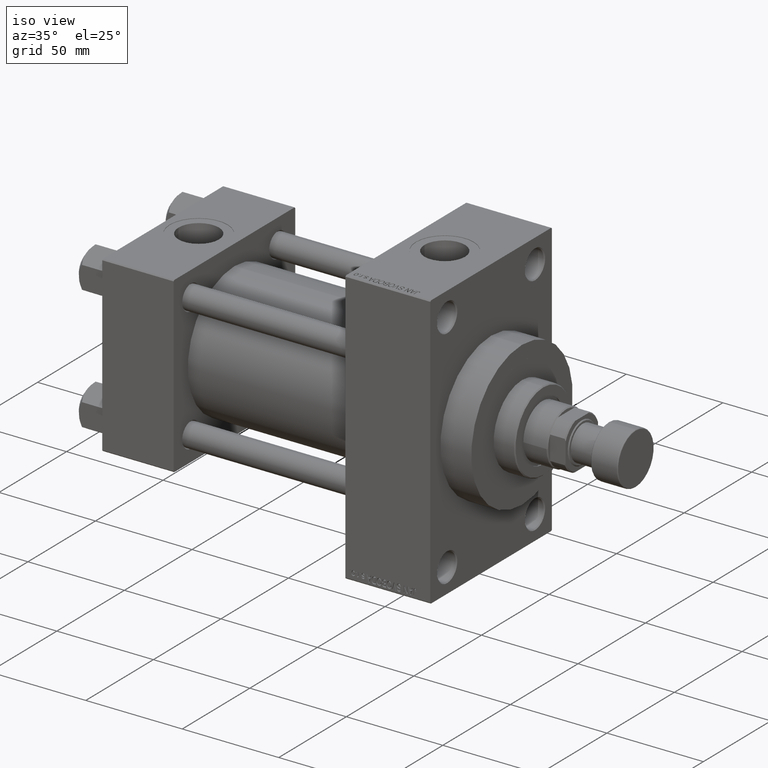
[diagram: clean part render]
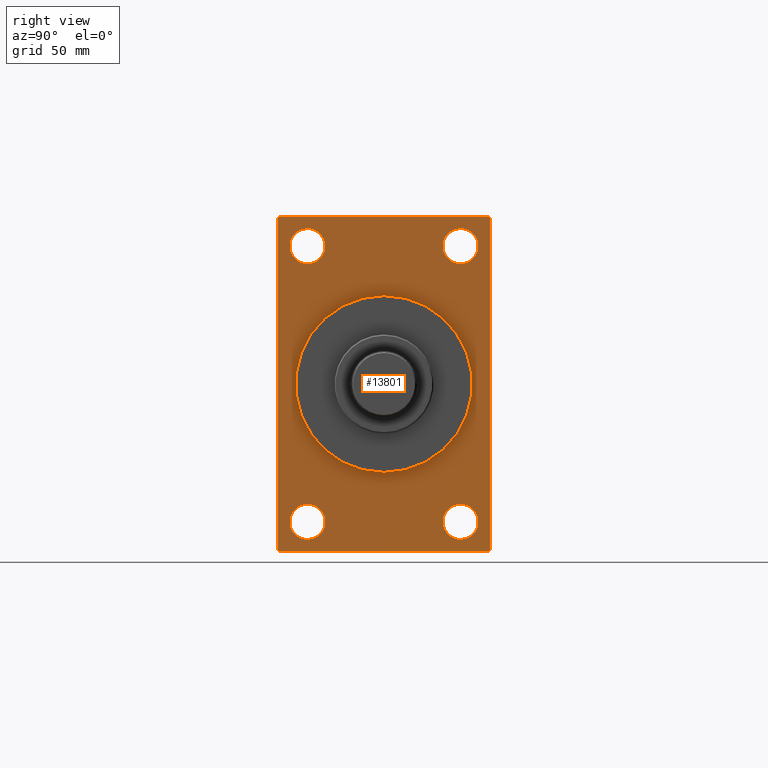
[diagram: tour spotlight — one face highlighted and labeled with its STEP entity id]
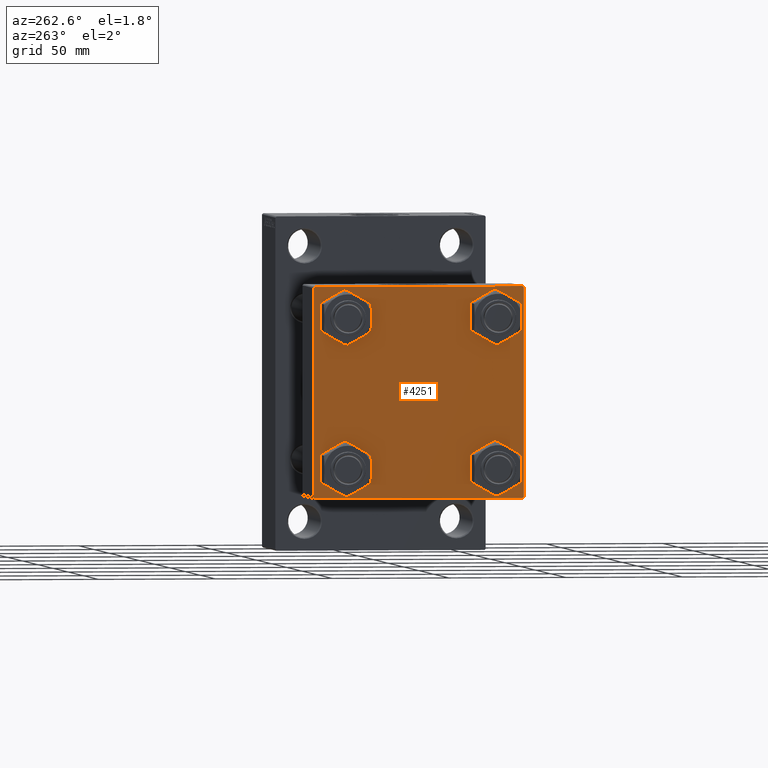
[diagram: tour spotlight — one face highlighted and labeled with its STEP entity id]
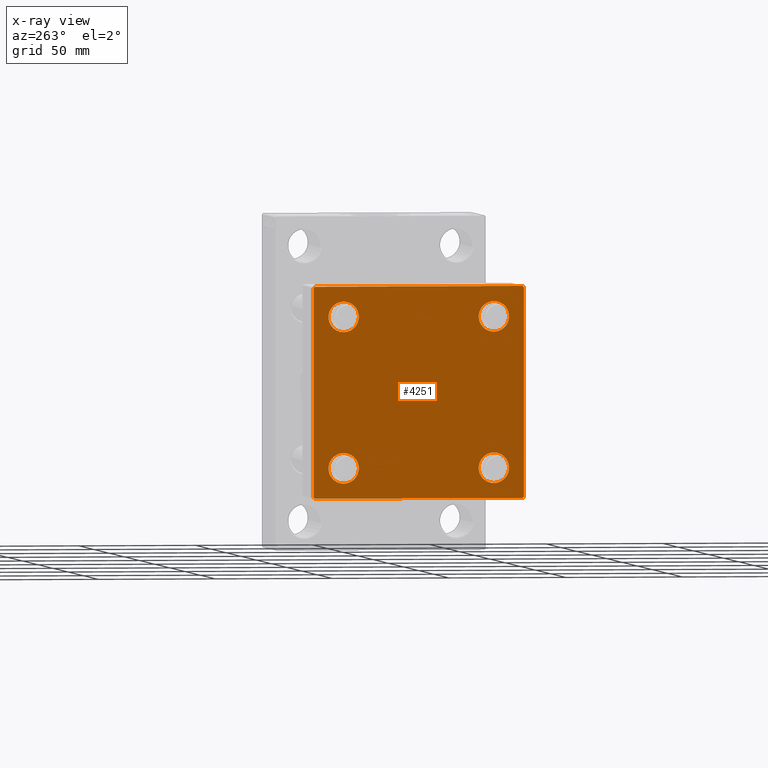
[diagram: x-ray of the same camera — body ghosted, this tour face saturated]
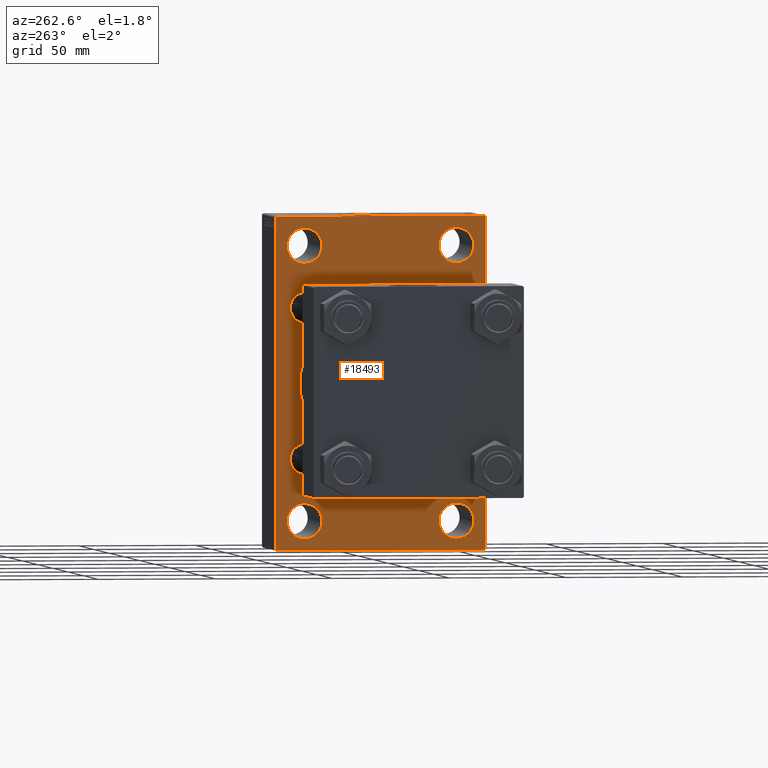
[diagram: tour spotlight — one face highlighted and labeled with its STEP entity id]
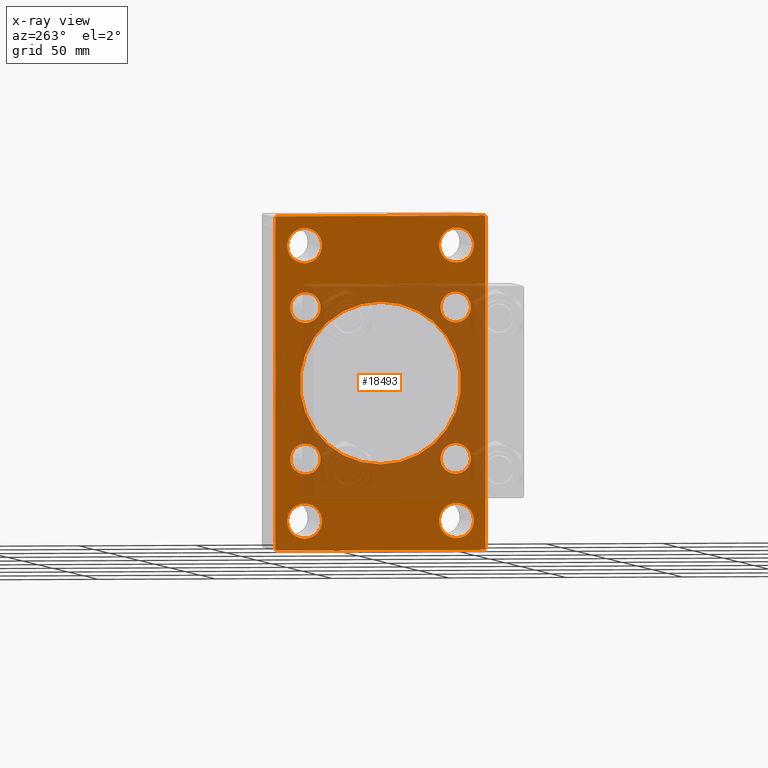
[diagram: x-ray of the same camera — body ghosted, this tour face saturated]
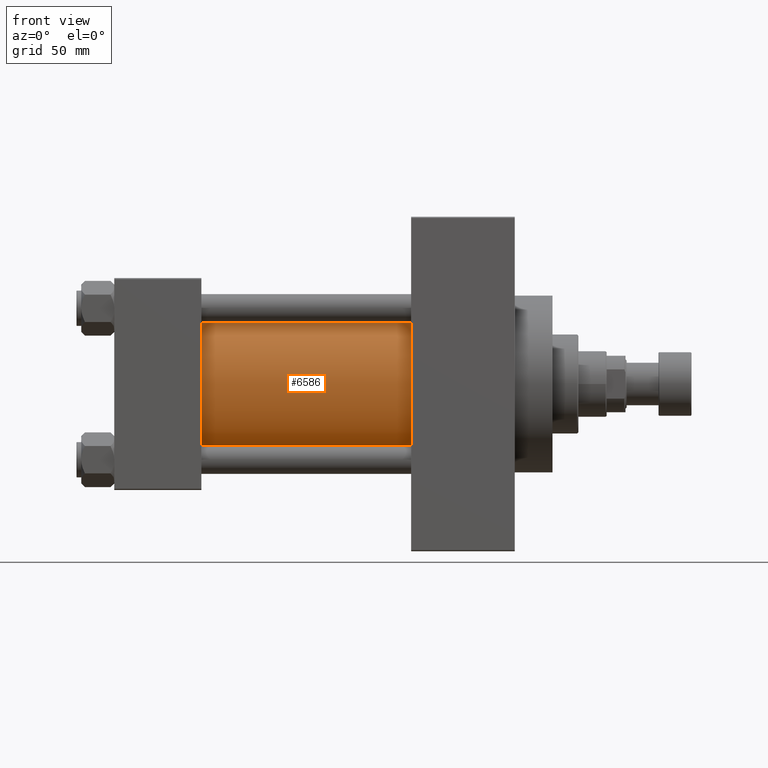
[diagram: tour spotlight — one face highlighted and labeled with its STEP entity id]
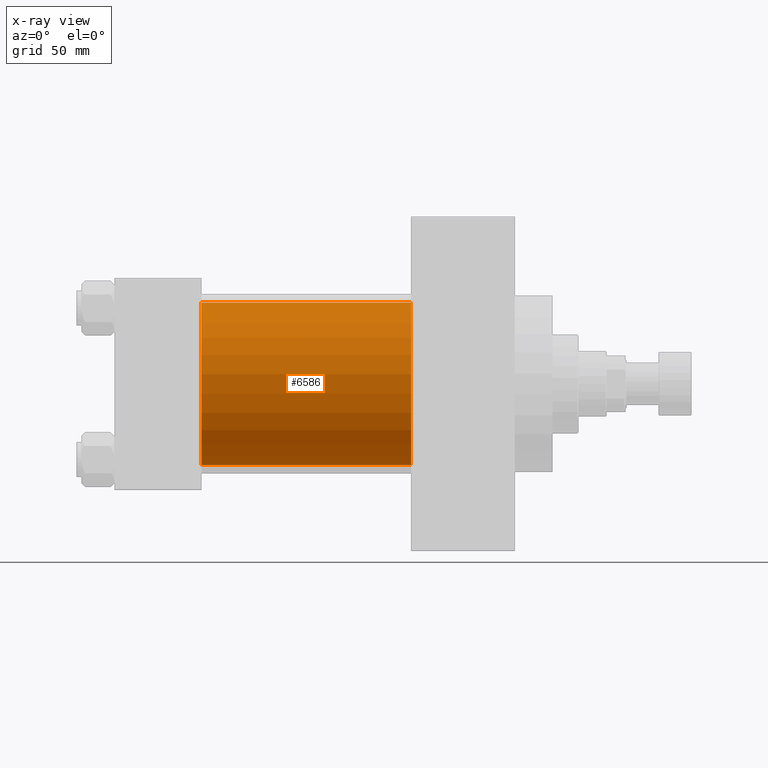
[diagram: x-ray of the same camera — body ghosted, this tour face saturated]
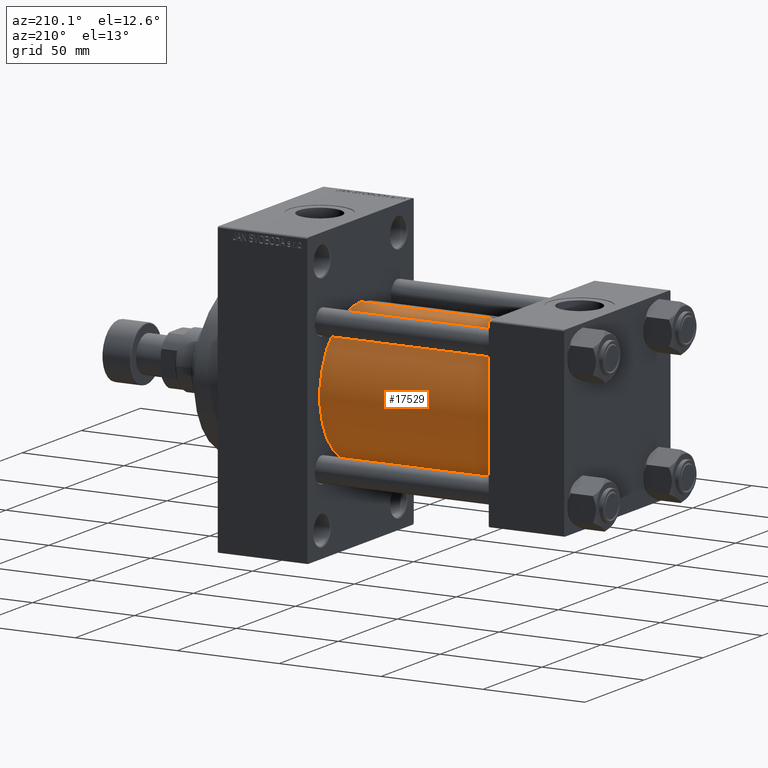
[diagram: tour spotlight — one face highlighted and labeled with its STEP entity id]
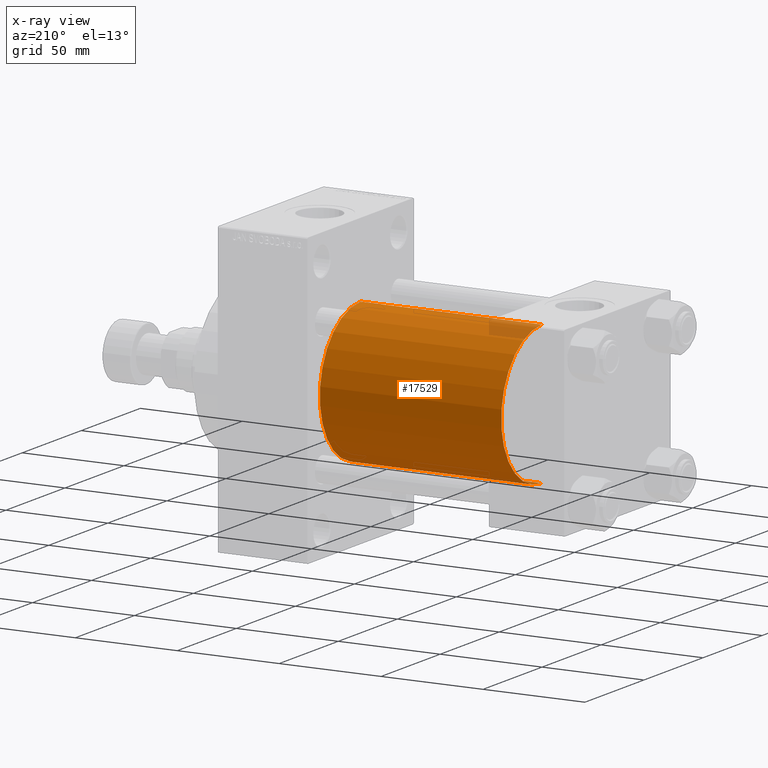
[diagram: x-ray of the same camera — body ghosted, this tour face saturated]
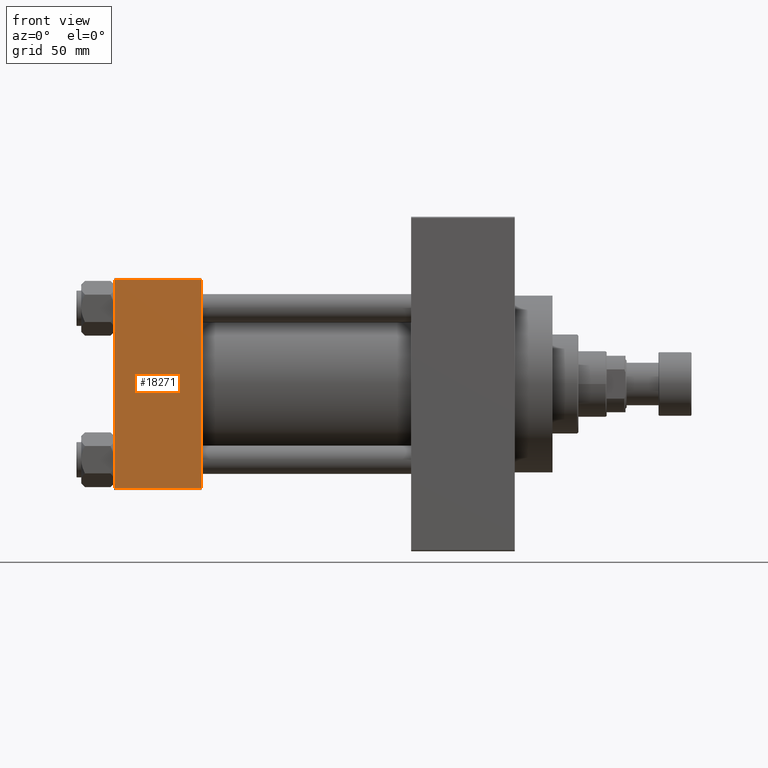
[diagram: tour spotlight — one face highlighted and labeled with its STEP entity id]
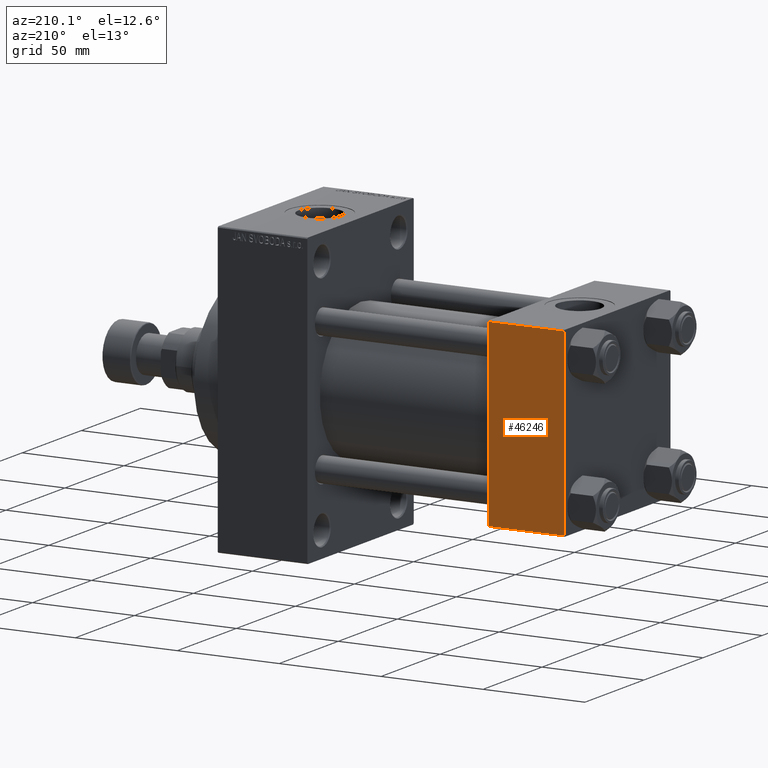
[diagram: tour spotlight — one face highlighted and labeled with its STEP entity id]
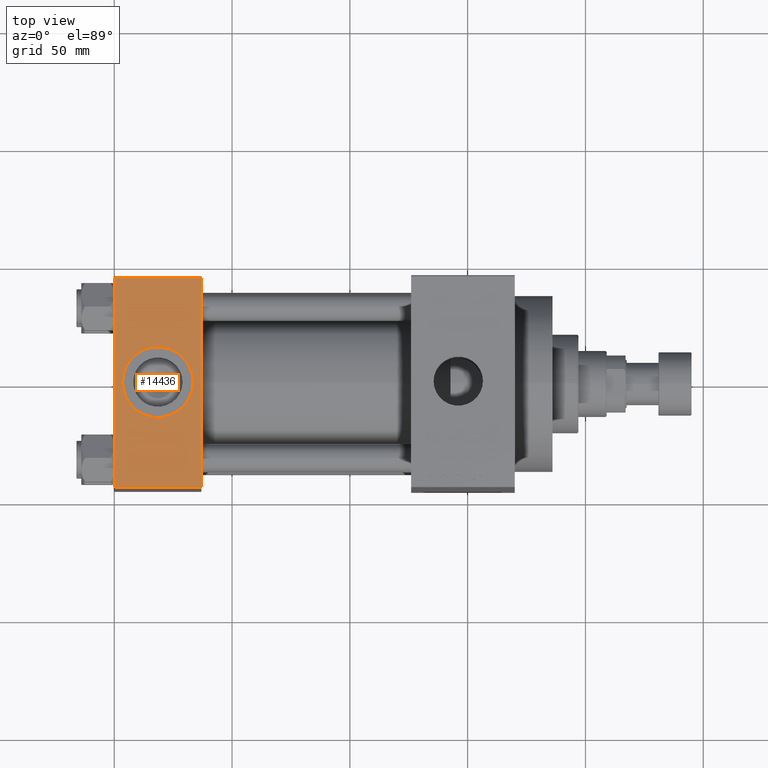
[diagram: tour spotlight — one face highlighted and labeled with its STEP entity id]
A machine part: a face-by-face anatomy tour. The part has 1117 B-rep faces; the first image is the clean iso view, then the 8 largest visible faces are spotlighted one at a time (largest first), each with its STEP entity span.

Face 1 — right view, entity #13801. In plain terms, the highlighted planar face has unit normal (-1, 0, 0).
Definition (entity closure, byte-faithful):
#478 = ORIENTED_EDGE ( 'NONE', *, *, #29616, .F. ) ;
#836 = ORIENTED_EDGE ( 'NONE', *, *, #45599, .T. ) ;
#917 = CIRCLE ( 'NONE', #20946, 7.500000000000000000 ) ;
#1020 = CIRCLE ( 'NONE', #7202, 7.500000000000007105 ) ;
#1313 = CIRCLE ( 'NONE', #3640, 7.500000000000007105 ) ;
#1695 = ORIENTED_EDGE ( 'NONE', *, *, #31720, .T. ) ;
#1926 = CARTESIAN_POINT ( 'NONE',  ( 169.9999999999999716, 45.00000000000000000, 71.00000000000000000 ) ) ;
#1978 = DIRECTION ( 'NONE',  ( -1.000000000000000000, -0.000000000000000000, -0.000000000000000000 ) ) ;
#2934 = LINE ( 'NONE', #17626, #31657 ) ;
#3036 = DIRECTION ( 'NONE',  ( 0.000000000000000000, 0.000000000000000000, 1.000000000000000000 ) ) ;
#3135 = CIRCLE ( 'NONE', #30072, 7.500000000000007105 ) ;
#3314 = DIRECTION ( 'NONE',  ( 1.000000000000000000, 0.000000000000000000, 0.000000000000000000 ) ) ;
#3576 = PLANE ( 'NONE',  #34539 ) ;
#3630 = ORIENTED_EDGE ( 'NONE', *, *, #39991, .T. ) ;
#3640 = AXIS2_PLACEMENT_3D ( 'NONE', #5564, #26774, #41477 ) ;
#3829 = EDGE_CURVE ( 'NONE', #38271, #32130, #44239, .T. ) ;
#4529 = DIRECTION ( 'NONE',  ( 0.000000000000000000, -1.000000000000000000, 0.000000000000000000 ) ) ;
#4767 = CARTESIAN_POINT ( 'NONE',  ( 169.9999999999999716, 45.00000000000000000, -71.00000000000000000 ) ) ;
#5414 = CARTESIAN_POINT ( 'NONE',  ( 169.9999999999999716, -32.50000000000001421, -50.99999999999997868 ) ) ;
#5564 = CARTESIAN_POINT ( 'NONE',  ( 169.9999999999999716, 32.49999999999998579, -58.49999999999998579 ) ) ;
#6650 = DIRECTION ( 'NONE',  ( 0.000000000000000000, 0.000000000000000000, -1.000000000000000000 ) ) ;
#6738 = CARTESIAN_POINT ( 'NONE',  ( 169.9999999999999716, -32.50000000000001421, -58.49999999999998579 ) ) ;
#6747 = VERTEX_POINT ( 'NONE', #34967 ) ;
#6943 = FACE_BOUND ( 'NONE', #23254, .T. ) ;
#7188 = DIRECTION ( 'NONE',  ( -0.000000000000000000, 0.000000000000000000, 1.000000000000000000 ) ) ;
#7202 = AXIS2_PLACEMENT_3D ( 'NONE', #6738, #35897, #21437 ) ;
#7886 = VERTEX_POINT ( 'NONE', #17129 ) ;
#7905 = FACE_BOUND ( 'NONE', #24904, .T. ) ;
#8881 = DIRECTION ( 'NONE',  ( -1.000000000000000000, -0.000000000000000000, -0.000000000000000000 ) ) ;
#9188 = EDGE_CURVE ( 'NONE', #42714, #9611, #23305, .T. ) ;
#9425 = ORIENTED_EDGE ( 'NONE', *, *, #19574, .T. ) ;
#9574 = CARTESIAN_POINT ( 'NONE',  ( 169.9999999999999716, 44.50000000000000000, 71.00000000000000000 ) ) ;
#9611 = VERTEX_POINT ( 'NONE', #12630 ) ;
#9639 = LINE ( 'NONE', #1926, #47234 ) ;
#10106 = DIRECTION ( 'NONE',  ( 0.000000000000000000, -0.7071067811865474617, 0.7071067811865474617 ) ) ;
#10139 = DIRECTION ( 'NONE',  ( 0.000000000000000000, 0.000000000000000000, 1.000000000000000000 ) ) ;
#10277 = DIRECTION ( 'NONE',  ( -0.000000000000000000, -0.7071067811865474617, -0.7071067811865474617 ) ) ;
#10555 = EDGE_CURVE ( 'NONE', #42331, #7886, #18278, .T. ) ;
#11012 = VERTEX_POINT ( 'NONE', #26282 ) ;
#11146 = VECTOR ( 'NONE', #10277, 1000.000000000000114 ) ;
#11878 = CIRCLE ( 'NONE', #38831, 7.499999999999992895 ) ;
#11951 = VERTEX_POINT ( 'NONE', #27699 ) ;
#12298 = VECTOR ( 'NONE', #39925, 1000.000000000000114 ) ;
#12630 = CARTESIAN_POINT ( 'NONE',  ( 169.9999999999999716, -44.49999999999997158, -71.00000000000000000 ) ) ;
#12902 = VECTOR ( 'NONE', #41096, 1000.000000000000000 ) ;
#13168 = EDGE_LOOP ( 'NONE', ( #31600, #27399 ) ) ;
#13801 = ADVANCED_FACE ( 'NONE', ( #6943, #44521, #7905, #44055, #29119, #36591 ), #3576, .F. ) ;
#14856 = CARTESIAN_POINT ( 'NONE',  ( 169.9999999999999716, -44.49999999999994316, 71.00000000000000000 ) ) ;
#14893 = AXIS2_PLACEMENT_3D ( 'NONE', #21622, #3314, #32715 ) ;
#14992 = CARTESIAN_POINT ( 'NONE',  ( 169.9999999999999716, 44.49999999999997158, -71.00000000000000000 ) ) ;
#15198 = AXIS2_PLACEMENT_3D ( 'NONE', #47099, #29496, #43714 ) ;
#15858 = EDGE_CURVE ( 'NONE', #31912, #9611, #28353, .T. ) ;
#15950 = VERTEX_POINT ( 'NONE', #31499 ) ;
#16217 = VERTEX_POINT ( 'NONE', #23829 ) ;
#16798 = ORIENTED_EDGE ( 'NONE', *, *, #9188, .F. ) ;
#17087 = CARTESIAN_POINT ( 'NONE',  ( 169.9999999999999716, 32.49999999999998579, 58.50000000000000711 ) ) ;
#17129 = CARTESIAN_POINT ( 'NONE',  ( 169.9999999999999716, 0.000000000000000000, 37.50000000000000711 ) ) ;
#17306 = LINE ( 'NONE', #43352, #26128 ) ;
#17626 = CARTESIAN_POINT ( 'NONE',  ( 169.9999999999999716, 45.00000000000000000, -70.49999999999997158 ) ) ;
#18278 = CIRCLE ( 'NONE', #15198, 37.50000000000000711 ) ;
#18454 = EDGE_CURVE ( 'NONE', #27225, #16217, #3135, .T. ) ;
#18482 = ORIENTED_EDGE ( 'NONE', *, *, #30913, .T. ) ;
#18567 = CARTESIAN_POINT ( 'NONE',  ( 169.9999999999999716, -32.50000000000001421, 58.50000000000001421 ) ) ;
#18798 = ORIENTED_EDGE ( 'NONE', *, *, #25246, .T. ) ;
#19073 = CARTESIAN_POINT ( 'NONE',  ( 169.9999999999999716, 32.49999999999998579, 51.00000000000001421 ) ) ;
#19550 = AXIS2_PLACEMENT_3D ( 'NONE', #18567, #44588, #33743 ) ;
#19574 = EDGE_CURVE ( 'NONE', #30998, #33720, #37046, .T. ) ;
#19640 = ORIENTED_EDGE ( 'NONE', *, *, #3829, .T. ) ;
#20487 = VECTOR ( 'NONE', #4529, 1000.000000000000000 ) ;
#20946 = AXIS2_PLACEMENT_3D ( 'NONE', #39301, #44518, #10139 ) ;
#21437 = DIRECTION ( 'NONE',  ( 0.000000000000000000, 0.000000000000000000, 1.000000000000000000 ) ) ;
#21483 = EDGE_CURVE ( 'NONE', #11012, #31912, #39918, .T. ) ;
#21596 = CARTESIAN_POINT ( 'NONE',  ( 169.9999999999999716, -32.50000000000001421, 51.00000000000001421 ) ) ;
#21622 = CARTESIAN_POINT ( 'NONE',  ( 169.9999999999999716, 0.000000000000000000, 0.000000000000000000 ) ) ;
#21799 = VERTEX_POINT ( 'NONE', #34271 ) ;
#21845 = CARTESIAN_POINT ( 'NONE',  ( 169.9999999999999716, 32.49999999999998579, 66.00000000000000000 ) ) ;
#22932 = EDGE_CURVE ( 'NONE', #42714, #21799, #2934, .T. ) ;
#23254 = EDGE_LOOP ( 'NONE', ( #38056, #18798 ) ) ;
#23305 = LINE ( 'NONE', #4767, #20487 ) ;
#23672 = CARTESIAN_POINT ( 'NONE',  ( 169.9999999999999716, -32.50000000000001421, -58.49999999999998579 ) ) ;
#23829 = CARTESIAN_POINT ( 'NONE',  ( 169.9999999999999716, -32.50000000000001421, -65.99999999999997158 ) ) ;
#23925 = CARTESIAN_POINT ( 'NONE',  ( 169.9999999999999716, 32.49999999999998579, -58.49999999999998579 ) ) ;
#24704 = EDGE_CURVE ( 'NONE', #11951, #15950, #34783, .T. ) ;
#24904 = EDGE_LOOP ( 'NONE', ( #3630, #39431 ) ) ;
#25246 = EDGE_CURVE ( 'NONE', #34808, #44634, #917, .T. ) ;
#26128 = VECTOR ( 'NONE', #10106, 1000.000000000000114 ) ;
#26282 = CARTESIAN_POINT ( 'NONE',  ( 169.9999999999999716, -45.00000000000000000, 70.49999999999997158 ) ) ;
#26774 = DIRECTION ( 'NONE',  ( -1.000000000000000000, -0.000000000000000000, -0.000000000000000000 ) ) ;
#27225 = VERTEX_POINT ( 'NONE', #5414 ) ;
#27293 = DIRECTION ( 'NONE',  ( -1.000000000000000000, -0.000000000000000000, -0.000000000000000000 ) ) ;
#27399 = ORIENTED_EDGE ( 'NONE', *, *, #18454, .T. ) ;
#27699 = CARTESIAN_POINT ( 'NONE',  ( 169.9999999999999716, 32.49999999999998579, -50.99999999999997868 ) ) ;
#27965 = EDGE_CURVE ( 'NONE', #7886, #42331, #39530, .T. ) ;
#28353 = LINE ( 'NONE', #47158, #12298 ) ;
#28832 = EDGE_CURVE ( 'NONE', #16217, #27225, #1020, .T. ) ;
#28857 = ORIENTED_EDGE ( 'NONE', *, *, #10555, .F. ) ;
#29119 = FACE_BOUND ( 'NONE', #32205, .T. ) ;
#29496 = DIRECTION ( 'NONE',  ( 1.000000000000000000, 0.000000000000000000, 0.000000000000000000 ) ) ;
#29616 = EDGE_CURVE ( 'NONE', #6747, #21799, #9639, .T. ) ;
#30072 = AXIS2_PLACEMENT_3D ( 'NONE', #23672, #1978, #45843 ) ;
#30742 = EDGE_CURVE ( 'NONE', #44634, #34808, #36514, .T. ) ;
#30913 = EDGE_CURVE ( 'NONE', #32130, #11012, #35817, .T. ) ;
#30998 = VERTEX_POINT ( 'NONE', #21845 ) ;
#31499 = CARTESIAN_POINT ( 'NONE',  ( 169.9999999999999716, 32.49999999999998579, -65.99999999999997158 ) ) ;
#31600 = ORIENTED_EDGE ( 'NONE', *, *, #28832, .T. ) ;
#31657 = VECTOR ( 'NONE', #33063, 1000.000000000000114 ) ;
#31720 = EDGE_CURVE ( 'NONE', #33720, #30998, #11878, .T. ) ;
#31912 = VERTEX_POINT ( 'NONE', #44308 ) ;
#32130 = VERTEX_POINT ( 'NONE', #14856 ) ;
#32205 = EDGE_LOOP ( 'NONE', ( #46321, #28857 ) ) ;
#32715 = DIRECTION ( 'NONE',  ( 0.000000000000000000, 0.000000000000000000, -1.000000000000000000 ) ) ;
#32739 = CARTESIAN_POINT ( 'NONE',  ( 169.9999999999999716, 0.000000000000000000, 0.000000000000000000 ) ) ;
#33063 = DIRECTION ( 'NONE',  ( -0.000000000000000000, 0.7071067811865474617, 0.7071067811865474617 ) ) ;
#33512 = CARTESIAN_POINT ( 'NONE',  ( 169.9999999999999716, -32.50000000000001421, 66.00000000000001421 ) ) ;
#33720 = VERTEX_POINT ( 'NONE', #19073 ) ;
#33743 = DIRECTION ( 'NONE',  ( 0.000000000000000000, 0.000000000000000000, 1.000000000000000000 ) ) ;
#33952 = AXIS2_PLACEMENT_3D ( 'NONE', #39669, #8881, #3036 ) ;
#34271 = CARTESIAN_POINT ( 'NONE',  ( 169.9999999999999716, 45.00000000000000000, -70.49999999999997158 ) ) ;
#34539 = AXIS2_PLACEMENT_3D ( 'NONE', #32739, #43816, #7188 ) ;
#34783 = CIRCLE ( 'NONE', #41723, 7.500000000000007105 ) ;
#34808 = VERTEX_POINT ( 'NONE', #33512 ) ;
#34967 = CARTESIAN_POINT ( 'NONE',  ( 169.9999999999999716, 45.00000000000000000, 70.50000000000000000 ) ) ;
#35123 = ORIENTED_EDGE ( 'NONE', *, *, #22932, .T. ) ;
#35505 = DIRECTION ( 'NONE',  ( 0.000000000000000000, 0.000000000000000000, 1.000000000000000000 ) ) ;
#35817 = LINE ( 'NONE', #42142, #11146 ) ;
#35897 = DIRECTION ( 'NONE',  ( -1.000000000000000000, -0.000000000000000000, -0.000000000000000000 ) ) ;
#36514 = CIRCLE ( 'NONE', #19550, 7.500000000000000000 ) ;
#36591 = FACE_OUTER_BOUND ( 'NONE', #45405, .T. ) ;
#37003 = VECTOR ( 'NONE', #6650, 1000.000000000000000 ) ;
#37023 = CARTESIAN_POINT ( 'NONE',  ( 169.9999999999999716, 45.00000000000000000, 71.00000000000000000 ) ) ;
#37046 = CIRCLE ( 'NONE', #33952, 7.499999999999992895 ) ;
#38056 = ORIENTED_EDGE ( 'NONE', *, *, #30742, .T. ) ;
#38271 = VERTEX_POINT ( 'NONE', #9574 ) ;
#38765 = EDGE_LOOP ( 'NONE', ( #1695, #9425 ) ) ;
#38831 = AXIS2_PLACEMENT_3D ( 'NONE', #17087, #42638, #39032 ) ;
#39032 = DIRECTION ( 'NONE',  ( 0.000000000000000000, 0.000000000000000000, 1.000000000000000000 ) ) ;
#39301 = CARTESIAN_POINT ( 'NONE',  ( 169.9999999999999716, -32.50000000000001421, 58.50000000000001421 ) ) ;
#39431 = ORIENTED_EDGE ( 'NONE', *, *, #24704, .T. ) ;
#39530 = CIRCLE ( 'NONE', #14893, 37.50000000000000711 ) ;
#39669 = CARTESIAN_POINT ( 'NONE',  ( 169.9999999999999716, 32.49999999999998579, 58.50000000000000711 ) ) ;
#39798 = ORIENTED_EDGE ( 'NONE', *, *, #15858, .T. ) ;
#39918 = LINE ( 'NONE', #43289, #37003 ) ;
#39925 = DIRECTION ( 'NONE',  ( 0.000000000000000000, 0.7071067811865474617, -0.7071067811865474617 ) ) ;
#39991 = EDGE_CURVE ( 'NONE', #15950, #11951, #1313, .T. ) ;
#40712 = ORIENTED_EDGE ( 'NONE', *, *, #21483, .T. ) ;
#41096 = DIRECTION ( 'NONE',  ( 0.000000000000000000, -1.000000000000000000, 0.000000000000000000 ) ) ;
#41477 = DIRECTION ( 'NONE',  ( 0.000000000000000000, 0.000000000000000000, 1.000000000000000000 ) ) ;
#41723 = AXIS2_PLACEMENT_3D ( 'NONE', #23925, #27293, #35505 ) ;
#42142 = CARTESIAN_POINT ( 'NONE',  ( 169.9999999999999716, -45.00000000000000000, 70.49999999999997158 ) ) ;
#42331 = VERTEX_POINT ( 'NONE', #42848 ) ;
#42638 = DIRECTION ( 'NONE',  ( -1.000000000000000000, -0.000000000000000000, -0.000000000000000000 ) ) ;
#42714 = VERTEX_POINT ( 'NONE', #14992 ) ;
#42848 = CARTESIAN_POINT ( 'NONE',  ( 169.9999999999999716, 4.592425496802575156E-15, -37.50000000000000711 ) ) ;
#43289 = CARTESIAN_POINT ( 'NONE',  ( 169.9999999999999716, -45.00000000000000000, 71.00000000000000000 ) ) ;
#43352 = CARTESIAN_POINT ( 'NONE',  ( 169.9999999999999716, 44.50000000000000000, 71.00000000000000000 ) ) ;
#43714 = DIRECTION ( 'NONE',  ( 0.000000000000000000, 0.000000000000000000, -1.000000000000000000 ) ) ;
#43816 = DIRECTION ( 'NONE',  ( -1.000000000000000000, 0.000000000000000000, -0.000000000000000000 ) ) ;
#44055 = FACE_BOUND ( 'NONE', #38765, .T. ) ;
#44239 = LINE ( 'NONE', #37023, #12902 ) ;
#44308 = CARTESIAN_POINT ( 'NONE',  ( 169.9999999999999716, -45.00000000000000000, -70.50000000000000000 ) ) ;
#44518 = DIRECTION ( 'NONE',  ( -1.000000000000000000, -0.000000000000000000, -0.000000000000000000 ) ) ;
#44521 = FACE_BOUND ( 'NONE', #13168, .T. ) ;
#44588 = DIRECTION ( 'NONE',  ( -1.000000000000000000, -0.000000000000000000, -0.000000000000000000 ) ) ;
#44634 = VERTEX_POINT ( 'NONE', #21596 ) ;
#45405 = EDGE_LOOP ( 'NONE', ( #40712, #39798, #16798, #35123, #478, #836, #19640, #18482 ) ) ;
#45599 = EDGE_CURVE ( 'NONE', #6747, #38271, #17306, .T. ) ;
#45843 = DIRECTION ( 'NONE',  ( 0.000000000000000000, 0.000000000000000000, 1.000000000000000000 ) ) ;
#46321 = ORIENTED_EDGE ( 'NONE', *, *, #27965, .F. ) ;
#46752 = DIRECTION ( 'NONE',  ( 0.000000000000000000, 0.000000000000000000, -1.000000000000000000 ) ) ;
#47099 = CARTESIAN_POINT ( 'NONE',  ( 169.9999999999999716, 0.000000000000000000, 0.000000000000000000 ) ) ;
#47158 = CARTESIAN_POINT ( 'NONE',  ( 169.9999999999999716, -44.50000000000000000, -71.00000000000000000 ) ) ;
#47234 = VECTOR ( 'NONE', #46752, 1000.000000000000000 ) ;

Face 2 — auxiliary view, entity #4251. An x-ray twin of the same camera follows (body ghosted, this face saturated) — the face is partly hidden behind the body. In plain terms, the highlighted planar face has unit normal (-1, 0, 0).
Definition (entity closure, byte-faithful):
#194 = CARTESIAN_POINT ( 'NONE',  ( 0.000000000000000000, 44.74999999999936762, 44.75000000000061107 ) ) ;
#296 = ORIENTED_EDGE ( 'NONE', *, *, #12979, .T. ) ;
#586 = VECTOR ( 'NONE', #9986, 1000.000000000000000 ) ;
#1176 = DIRECTION ( 'NONE',  ( 1.000000000000000000, -0.000000000000000000, 0.000000000000000000 ) ) ;
#1446 = CIRCLE ( 'NONE', #19154, 6.499999999999977796 ) ;
#1838 = EDGE_CURVE ( 'NONE', #14559, #42119, #29031, .T. ) ;
#2138 = FACE_BOUND ( 'NONE', #15774, .T. ) ;
#2491 = VERTEX_POINT ( 'NONE', #18193 ) ;
#2536 = CARTESIAN_POINT ( 'NONE',  ( 0.000000000000000000, -45.00000000000000000, 44.99999999999998579 ) ) ;
#2772 = EDGE_CURVE ( 'NONE', #7596, #4585, #42730, .T. ) ;
#2822 = VECTOR ( 'NONE', #4072, 1000.000000000000000 ) ;
#3301 = ORIENTED_EDGE ( 'NONE', *, *, #10510, .T. ) ;
#3818 = ORIENTED_EDGE ( 'NONE', *, *, #7411, .T. ) ;
#4072 = DIRECTION ( 'NONE',  ( 0.000000000000000000, -0.7071067811865672237, 0.7071067811865279218 ) ) ;
#4251 = ADVANCED_FACE ( 'NONE', ( #34683, #45529, #12496, #2138, #27196 ), #5034, .T. ) ;
#4322 = CARTESIAN_POINT ( 'NONE',  ( 0.000000000000000000, 32.14999999999999147, -25.64999999999997726 ) ) ;
#4422 = DIRECTION ( 'NONE',  ( -0.000000000000000000, -0.7071067811865474617, -0.7071067811865474617 ) ) ;
#4572 = EDGE_CURVE ( 'NONE', #44793, #24268, #35561, .T. ) ;
#4585 = VERTEX_POINT ( 'NONE', #14807 ) ;
#4709 = DIRECTION ( 'NONE',  ( 0.000000000000000000, 0.000000000000000000, -1.000000000000000000 ) ) ;
#5030 = CARTESIAN_POINT ( 'NONE',  ( 0.000000000000000000, 32.14999999999999147, 38.65000000000001990 ) ) ;
#5034 = PLANE ( 'NONE',  #44620 ) ;
#5046 = ORIENTED_EDGE ( 'NONE', *, *, #21087, .T. ) ;
#5122 = CARTESIAN_POINT ( 'NONE',  ( 0.000000000000000000, 45.00000000000000000, -44.49999999999996447 ) ) ;
#5278 = DIRECTION ( 'NONE',  ( -0.000000000000000000, 0.000000000000000000, 1.000000000000000000 ) ) ;
#6789 = AXIS2_PLACEMENT_3D ( 'NONE', #47220, #17806, #46983 ) ;
#7042 = CARTESIAN_POINT ( 'NONE',  ( 0.000000000000000000, -32.14999999999997726, 38.64999999999999147 ) ) ;
#7403 = EDGE_CURVE ( 'NONE', #42119, #14559, #45966, .T. ) ;
#7411 = EDGE_CURVE ( 'NONE', #7596, #24345, #29125, .T. ) ;
#7596 = VERTEX_POINT ( 'NONE', #27859 ) ;
#8373 = ORIENTED_EDGE ( 'NONE', *, *, #4572, .F. ) ;
#9032 = EDGE_CURVE ( 'NONE', #32923, #24268, #14674, .T. ) ;
#9498 = CARTESIAN_POINT ( 'NONE',  ( 0.000000000000000000, -45.00000000000000000, 44.49999999999998579 ) ) ;
#9630 = EDGE_CURVE ( 'NONE', #42435, #14457, #39021, .T. ) ;
#9636 = ORIENTED_EDGE ( 'NONE', *, *, #43144, .T. ) ;
#9986 = DIRECTION ( 'NONE',  ( 0.000000000000000000, -1.000000000000000000, -7.709882115452476934E-17 ) ) ;
#10095 = CARTESIAN_POINT ( 'NONE',  ( 0.000000000000000000, 32.14999999999999147, 25.64999999999997726 ) ) ;
#10510 = EDGE_CURVE ( 'NONE', #28097, #32923, #13578, .T. ) ;
#10565 = DIRECTION ( 'NONE',  ( 0.000000000000000000, 0.000000000000000000, 1.000000000000000000 ) ) ;
#10809 = CARTESIAN_POINT ( 'NONE',  ( 0.000000000000000000, 32.14999999999999147, -32.14999999999999858 ) ) ;
#11239 = AXIS2_PLACEMENT_3D ( 'NONE', #30351, #1176, #44341 ) ;
#11327 = AXIS2_PLACEMENT_3D ( 'NONE', #10809, #47436, #10565 ) ;
#11466 = CARTESIAN_POINT ( 'NONE',  ( 0.000000000000000000, 45.00000000000000000, 45.00000000000000711 ) ) ;
#11506 = ORIENTED_EDGE ( 'NONE', *, *, #44522, .T. ) ;
#11876 = ORIENTED_EDGE ( 'NONE', *, *, #7403, .T. ) ;
#12005 = EDGE_CURVE ( 'NONE', #43331, #26309, #22167, .T. ) ;
#12496 = FACE_BOUND ( 'NONE', #19746, .T. ) ;
#12832 = AXIS2_PLACEMENT_3D ( 'NONE', #43926, #42964, #36466 ) ;
#12979 = EDGE_CURVE ( 'NONE', #28270, #28097, #29509, .T. ) ;
#13064 = VECTOR ( 'NONE', #17219, 1000.000000000000000 ) ;
#13120 = DIRECTION ( 'NONE',  ( 0.000000000000000000, 0.000000000000000000, 1.000000000000000000 ) ) ;
#13224 = CARTESIAN_POINT ( 'NONE',  ( 0.000000000000000000, 0.000000000000000000, 0.000000000000000000 ) ) ;
#13293 = LINE ( 'NONE', #21235, #44759 ) ;
#13578 = LINE ( 'NONE', #38423, #586 ) ;
#14452 = ORIENTED_EDGE ( 'NONE', *, *, #16494, .T. ) ;
#14457 = VERTEX_POINT ( 'NONE', #40277 ) ;
#14559 = VERTEX_POINT ( 'NONE', #24544 ) ;
#14674 = LINE ( 'NONE', #22148, #2822 ) ;
#14807 = CARTESIAN_POINT ( 'NONE',  ( 0.000000000000000000, -44.49999999999997158, 44.99999999999998579 ) ) ;
#15686 = CIRCLE ( 'NONE', #28022, 6.499999999999977796 ) ;
#15774 = EDGE_LOOP ( 'NONE', ( #24643, #25773 ) ) ;
#16219 = DIRECTION ( 'NONE',  ( 0.000000000000000000, -1.000000000000000000, -2.312964634635742957E-16 ) ) ;
#16494 = EDGE_CURVE ( 'NONE', #24345, #28270, #37260, .T. ) ;
#16765 = CARTESIAN_POINT ( 'NONE',  ( 0.000000000000000000, -32.14999999999997726, 32.15000000000000568 ) ) ;
#16804 = VECTOR ( 'NONE', #4422, 1000.000000000000114 ) ;
#17219 = DIRECTION ( 'NONE',  ( 0.000000000000000000, 0.000000000000000000, -1.000000000000000000 ) ) ;
#17463 = CARTESIAN_POINT ( 'NONE',  ( 0.000000000000000000, 45.00000000000000000, 44.49999999999999289 ) ) ;
#17696 = CARTESIAN_POINT ( 'NONE',  ( 0.000000000000000000, 44.50000000000000000, -44.99999999999999289 ) ) ;
#17806 = DIRECTION ( 'NONE',  ( 1.000000000000000000, -0.000000000000000000, 0.000000000000000000 ) ) ;
#18193 = CARTESIAN_POINT ( 'NONE',  ( 0.000000000000000000, -32.14999999999997726, 25.65000000000002700 ) ) ;
#19113 = AXIS2_PLACEMENT_3D ( 'NONE', #31299, #30587, #45527 ) ;
#19154 = AXIS2_PLACEMENT_3D ( 'NONE', #16765, #46907, #20377 ) ;
#19746 = EDGE_LOOP ( 'NONE', ( #11876, #37673 ) ) ;
#20270 = DIRECTION ( 'NONE',  ( 1.000000000000000000, -0.000000000000000000, 0.000000000000000000 ) ) ;
#20377 = DIRECTION ( 'NONE',  ( 0.000000000000000000, 0.000000000000000000, 1.000000000000000000 ) ) ;
#21087 = EDGE_CURVE ( 'NONE', #44793, #4585, #13293, .T. ) ;
#21235 = CARTESIAN_POINT ( 'NONE',  ( -0.000000000000000000, -44.74999999999999289, 44.74999999999999289 ) ) ;
#21402 = CARTESIAN_POINT ( 'NONE',  ( 0.000000000000000000, -32.14999999999997726, -38.64999999999998437 ) ) ;
#22008 = CIRCLE ( 'NONE', #11239, 6.500000000000019540 ) ;
#22148 = CARTESIAN_POINT ( 'NONE',  ( 0.000000000000000000, -44.74999999999873523, -44.75000000000122924 ) ) ;
#22167 = CIRCLE ( 'NONE', #6789, 6.500000000000019540 ) ;
#23295 = EDGE_LOOP ( 'NONE', ( #14452, #296, #3301, #36214, #8373, #5046, #44125, #3818 ) ) ;
#24124 = DIRECTION ( 'NONE',  ( 0.000000000000000000, 0.000000000000000000, 1.000000000000000000 ) ) ;
#24268 = VERTEX_POINT ( 'NONE', #45208 ) ;
#24345 = VERTEX_POINT ( 'NONE', #17463 ) ;
#24416 = CARTESIAN_POINT ( 'NONE',  ( 0.000000000000000000, 45.00000000000000000, 45.00000000000000711 ) ) ;
#24544 = CARTESIAN_POINT ( 'NONE',  ( 0.000000000000000000, 32.14999999999999147, -38.65000000000001990 ) ) ;
#24643 = ORIENTED_EDGE ( 'NONE', *, *, #33907, .T. ) ;
#25773 = ORIENTED_EDGE ( 'NONE', *, *, #12005, .T. ) ;
#26309 = VERTEX_POINT ( 'NONE', #5030 ) ;
#27196 = FACE_OUTER_BOUND ( 'NONE', #23295, .T. ) ;
#27776 = VERTEX_POINT ( 'NONE', #7042 ) ;
#27859 = CARTESIAN_POINT ( 'NONE',  ( 0.000000000000000000, 44.49999999999997158, 45.00000000000000711 ) ) ;
#28022 = AXIS2_PLACEMENT_3D ( 'NONE', #34512, #20270, #24124 ) ;
#28097 = VERTEX_POINT ( 'NONE', #17696 ) ;
#28270 = VERTEX_POINT ( 'NONE', #5122 ) ;
#28711 = DIRECTION ( 'NONE',  ( -0.000000000000000000, 0.7071067811865474617, 0.7071067811865474617 ) ) ;
#28868 = DIRECTION ( 'NONE',  ( 0.000000000000000000, 0.7071067811865574537, -0.7071067811865376918 ) ) ;
#29031 = CIRCLE ( 'NONE', #12832, 6.500000000000019540 ) ;
#29125 = LINE ( 'NONE', #194, #32924 ) ;
#29509 = LINE ( 'NONE', #37434, #16804 ) ;
#30277 = EDGE_LOOP ( 'NONE', ( #9636, #35593 ) ) ;
#30351 = CARTESIAN_POINT ( 'NONE',  ( 0.000000000000000000, 32.14999999999999147, 32.14999999999999858 ) ) ;
#30496 = EDGE_CURVE ( 'NONE', #2491, #27776, #15686, .T. ) ;
#30587 = DIRECTION ( 'NONE',  ( 1.000000000000000000, -0.000000000000000000, 0.000000000000000000 ) ) ;
#31299 = CARTESIAN_POINT ( 'NONE',  ( 0.000000000000000000, -32.14999999999997726, -32.15000000000000568 ) ) ;
#32882 = AXIS2_PLACEMENT_3D ( 'NONE', #35299, #46143, #13120 ) ;
#32923 = VERTEX_POINT ( 'NONE', #33783 ) ;
#32924 = VECTOR ( 'NONE', #28868, 999.9999999999998863 ) ;
#33783 = CARTESIAN_POINT ( 'NONE',  ( 0.000000000000000000, -44.49999999999994316, -45.00000000000000000 ) ) ;
#33907 = EDGE_CURVE ( 'NONE', #26309, #43331, #22008, .T. ) ;
#34461 = VECTOR ( 'NONE', #16219, 1000.000000000000000 ) ;
#34512 = CARTESIAN_POINT ( 'NONE',  ( 0.000000000000000000, -32.14999999999997726, 32.15000000000000568 ) ) ;
#34683 = FACE_BOUND ( 'NONE', #40147, .T. ) ;
#35299 = CARTESIAN_POINT ( 'NONE',  ( 0.000000000000000000, -32.14999999999997726, -32.15000000000000568 ) ) ;
#35561 = LINE ( 'NONE', #2536, #13064 ) ;
#35593 = ORIENTED_EDGE ( 'NONE', *, *, #9630, .T. ) ;
#36214 = ORIENTED_EDGE ( 'NONE', *, *, #9032, .T. ) ;
#36466 = DIRECTION ( 'NONE',  ( 0.000000000000000000, 0.000000000000000000, 1.000000000000000000 ) ) ;
#37260 = LINE ( 'NONE', #11466, #40026 ) ;
#37434 = CARTESIAN_POINT ( 'NONE',  ( 0.000000000000000000, 44.74999999999999289, -44.74999999999999289 ) ) ;
#37673 = ORIENTED_EDGE ( 'NONE', *, *, #1838, .T. ) ;
#38366 = CIRCLE ( 'NONE', #19113, 6.499999999999977796 ) ;
#38423 = CARTESIAN_POINT ( 'NONE',  ( 0.000000000000000000, 45.00000000000000000, -44.99999999999999289 ) ) ;
#39021 = CIRCLE ( 'NONE', #32882, 6.499999999999977796 ) ;
#39360 = ORIENTED_EDGE ( 'NONE', *, *, #30496, .T. ) ;
#40026 = VECTOR ( 'NONE', #4709, 1000.000000000000000 ) ;
#40147 = EDGE_LOOP ( 'NONE', ( #11506, #39360 ) ) ;
#40277 = CARTESIAN_POINT ( 'NONE',  ( 0.000000000000000000, -32.14999999999997726, -25.65000000000002700 ) ) ;
#42119 = VERTEX_POINT ( 'NONE', #4322 ) ;
#42435 = VERTEX_POINT ( 'NONE', #21402 ) ;
#42730 = LINE ( 'NONE', #24416, #34461 ) ;
#42964 = DIRECTION ( 'NONE',  ( 1.000000000000000000, -0.000000000000000000, 0.000000000000000000 ) ) ;
#43144 = EDGE_CURVE ( 'NONE', #14457, #42435, #38366, .T. ) ;
#43331 = VERTEX_POINT ( 'NONE', #10095 ) ;
#43926 = CARTESIAN_POINT ( 'NONE',  ( 0.000000000000000000, 32.14999999999999147, -32.14999999999999858 ) ) ;
#44125 = ORIENTED_EDGE ( 'NONE', *, *, #2772, .F. ) ;
#44341 = DIRECTION ( 'NONE',  ( 0.000000000000000000, 0.000000000000000000, 1.000000000000000000 ) ) ;
#44522 = EDGE_CURVE ( 'NONE', #27776, #2491, #1446, .T. ) ;
#44620 = AXIS2_PLACEMENT_3D ( 'NONE', #13224, #45757, #5278 ) ;
#44759 = VECTOR ( 'NONE', #28711, 1000.000000000000114 ) ;
#44793 = VERTEX_POINT ( 'NONE', #9498 ) ;
#45208 = CARTESIAN_POINT ( 'NONE',  ( 0.000000000000000000, -45.00000000000000000, -44.49999999999997158 ) ) ;
#45527 = DIRECTION ( 'NONE',  ( 0.000000000000000000, 0.000000000000000000, 1.000000000000000000 ) ) ;
#45529 = FACE_BOUND ( 'NONE', #30277, .T. ) ;
#45757 = DIRECTION ( 'NONE',  ( -1.000000000000000000, 0.000000000000000000, -0.000000000000000000 ) ) ;
#45966 = CIRCLE ( 'NONE', #11327, 6.500000000000019540 ) ;
#46143 = DIRECTION ( 'NONE',  ( 1.000000000000000000, -0.000000000000000000, 0.000000000000000000 ) ) ;
#46907 = DIRECTION ( 'NONE',  ( 1.000000000000000000, -0.000000000000000000, 0.000000000000000000 ) ) ;
#46983 = DIRECTION ( 'NONE',  ( 0.000000000000000000, 0.000000000000000000, 1.000000000000000000 ) ) ;
#47220 = CARTESIAN_POINT ( 'NONE',  ( 0.000000000000000000, 32.14999999999999147, 32.14999999999999858 ) ) ;
#47436 = DIRECTION ( 'NONE',  ( 1.000000000000000000, -0.000000000000000000, 0.000000000000000000 ) ) ;

Face 3 — auxiliary view, entity #18493. An x-ray twin of the same camera follows (body ghosted, this face saturated) — the face is partly hidden behind the body. In plain terms, the highlighted planar face has unit normal (-1, 0, 0).
Definition (entity closure, byte-faithful):
#208 = DIRECTION ( 'NONE',  ( 0.000000000000000000, -0.7071067811865474617, 0.7071067811865474617 ) ) ;
#378 = DIRECTION ( 'NONE',  ( -0.000000000000000000, -0.7071067811865474617, -0.7071067811865474617 ) ) ;
#507 = CIRCLE ( 'NONE', #45921, 7.500000000000055067 ) ;
#1023 = DIRECTION ( 'NONE',  ( 1.000000000000000000, 0.000000000000000000, 0.000000000000000000 ) ) ;
#1145 = DIRECTION ( 'NONE',  ( 0.000000000000000000, 0.7071067811865474617, -0.7071067811865474617 ) ) ;
#1223 = DIRECTION ( 'NONE',  ( 0.000000000000000000, 0.000000000000000000, 1.000000000000000000 ) ) ;
#1347 = ORIENTED_EDGE ( 'NONE', *, *, #11738, .T. ) ;
#1726 = EDGE_CURVE ( 'NONE', #34912, #36372, #6696, .T. ) ;
#2099 = AXIS2_PLACEMENT_3D ( 'NONE', #30108, #12006, #22857 ) ;
#2322 = EDGE_LOOP ( 'NONE', ( #13092, #22789 ) ) ;
#2472 = FACE_BOUND ( 'NONE', #17312, .T. ) ;
#2533 = DIRECTION ( 'NONE',  ( 0.000000000000000000, 0.000000000000000000, 1.000000000000000000 ) ) ;
#2632 = DIRECTION ( 'NONE',  ( 1.000000000000000000, 0.000000000000000000, 0.000000000000000000 ) ) ;
#3058 = VERTEX_POINT ( 'NONE', #45096 ) ;
#3433 = DIRECTION ( 'NONE',  ( 0.000000000000000000, -1.000000000000000000, 0.000000000000000000 ) ) ;
#4041 = VERTEX_POINT ( 'NONE', #36655 ) ;
#4206 = DIRECTION ( 'NONE',  ( 1.000000000000000000, 0.000000000000000000, 0.000000000000000000 ) ) ;
#4229 = CARTESIAN_POINT ( 'NONE',  ( 126.0000000000000000, 44.49999999999997158, -71.00000000000000000 ) ) ;
#4508 = DIRECTION ( 'NONE',  ( 0.000000000000000000, 0.000000000000000000, 1.000000000000000000 ) ) ;
#4530 = VERTEX_POINT ( 'NONE', #6153 ) ;
#4773 = CARTESIAN_POINT ( 'NONE',  ( 126.0000000000000000, 57.74999999999998579, 57.74999999999998579 ) ) ;
#4883 = CARTESIAN_POINT ( 'NONE',  ( 126.0000000000000000, 45.00000000000000000, -70.49999999999997158 ) ) ;
#5340 = DIRECTION ( 'NONE',  ( 0.000000000000000000, 0.000000000000000000, 1.000000000000000000 ) ) ;
#5477 = DIRECTION ( 'NONE',  ( 1.000000000000000000, 0.000000000000000000, 0.000000000000000000 ) ) ;
#5863 = EDGE_LOOP ( 'NONE', ( #43264, #38524 ) ) ;
#5993 = CIRCLE ( 'NONE', #46805, 7.500000000000055067 ) ;
#6153 = CARTESIAN_POINT ( 'NONE',  ( 126.0000000000000000, -44.49999999999994316, 71.00000000000000000 ) ) ;
#6178 = CARTESIAN_POINT ( 'NONE',  ( 126.0000000000000000, 45.00000000000000000, 71.00000000000000000 ) ) ;
#6248 = CARTESIAN_POINT ( 'NONE',  ( 126.0000000000000000, 32.49999999999998579, -66.00000000000002842 ) ) ;
#6341 = CARTESIAN_POINT ( 'NONE',  ( 126.0000000000000000, 32.14999999999999147, 32.14999999999999858 ) ) ;
#6696 = CIRCLE ( 'NONE', #21316, 7.500000000000047962 ) ;
#6803 = LINE ( 'NONE', #36454, #39829 ) ;
#6937 = EDGE_CURVE ( 'NONE', #18289, #14393, #8266, .T. ) ;
#7388 = CARTESIAN_POINT ( 'NONE',  ( 126.0000000000000000, 57.74999999999997158, -57.74999999999997158 ) ) ;
#8100 = CARTESIAN_POINT ( 'NONE',  ( 126.0000000000000000, -57.74999999999997158, 57.74999999999997158 ) ) ;
#8266 = CIRCLE ( 'NONE', #2099, 34.50000000000000000 ) ;
#8269 = CARTESIAN_POINT ( 'NONE',  ( 126.0000000000000000, 32.49999999999998579, 58.50000000000000711 ) ) ;
#9285 = EDGE_CURVE ( 'NONE', #14932, #33264, #507, .T. ) ;
#9326 = DIRECTION ( 'NONE',  ( 1.000000000000000000, 0.000000000000000000, 0.000000000000000000 ) ) ;
#9597 = ORIENTED_EDGE ( 'NONE', *, *, #14911, .T. ) ;
#9848 = EDGE_CURVE ( 'NONE', #25555, #4041, #25956, .T. ) ;
#10588 = DIRECTION ( 'NONE',  ( 0.000000000000000000, 0.000000000000000000, -1.000000000000000000 ) ) ;
#10696 = CARTESIAN_POINT ( 'NONE',  ( 126.0000000000000000, -32.14999999999997726, -38.65000000000001279 ) ) ;
#10743 = CARTESIAN_POINT ( 'NONE',  ( 126.0000000000000000, 32.49999999999998579, 50.99999999999995026 ) ) ;
#11109 = CARTESIAN_POINT ( 'NONE',  ( 126.0000000000000000, 32.14999999999999147, -25.64999999999999147 ) ) ;
#11294 = CIRCLE ( 'NONE', #17440, 6.500000000000005329 ) ;
#11415 = EDGE_CURVE ( 'NONE', #33655, #27170, #37096, .T. ) ;
#11598 = CARTESIAN_POINT ( 'NONE',  ( 126.0000000000000000, -32.14999999999997726, -25.64999999999999858 ) ) ;
#11636 = EDGE_CURVE ( 'NONE', #22741, #21592, #47646, .T. ) ;
#11714 = ORIENTED_EDGE ( 'NONE', *, *, #28063, .T. ) ;
#11733 = VERTEX_POINT ( 'NONE', #30483 ) ;
#11738 = EDGE_CURVE ( 'NONE', #19646, #13241, #36030, .T. ) ;
#11865 = DIRECTION ( 'NONE',  ( 1.000000000000000000, 0.000000000000000000, 0.000000000000000000 ) ) ;
#11966 = ORIENTED_EDGE ( 'NONE', *, *, #32656, .T. ) ;
#11990 = VERTEX_POINT ( 'NONE', #25535 ) ;
#12006 = DIRECTION ( 'NONE',  ( 1.000000000000000000, 0.000000000000000000, 0.000000000000000000 ) ) ;
#12069 = CARTESIAN_POINT ( 'NONE',  ( 126.0000000000000000, -32.14999999999997726, 25.65000000000000213 ) ) ;
#12556 = CARTESIAN_POINT ( 'NONE',  ( 126.0000000000000000, -32.14999999999997726, -32.15000000000000568 ) ) ;
#12818 = CARTESIAN_POINT ( 'NONE',  ( 126.0000000000000000, 32.49999999999998579, -50.99999999999993605 ) ) ;
#12860 = CIRCLE ( 'NONE', #32886, 7.500000000000047962 ) ;
#13014 = ORIENTED_EDGE ( 'NONE', *, *, #29281, .T. ) ;
#13066 = PLANE ( 'NONE',  #13132 ) ;
#13092 = ORIENTED_EDGE ( 'NONE', *, *, #22720, .T. ) ;
#13132 = AXIS2_PLACEMENT_3D ( 'NONE', #31644, #46335, #46566 ) ;
#13162 = CARTESIAN_POINT ( 'NONE',  ( 126.0000000000000000, -32.50000000000001421, 66.00000000000008527 ) ) ;
#13241 = VERTEX_POINT ( 'NONE', #12069 ) ;
#13528 = DIRECTION ( 'NONE',  ( 0.000000000000000000, 0.000000000000000000, 1.000000000000000000 ) ) ;
#13539 = FACE_BOUND ( 'NONE', #39971, .T. ) ;
#13550 = CIRCLE ( 'NONE', #36667, 6.499999999999999112 ) ;
#13687 = DIRECTION ( 'NONE',  ( 0.000000000000000000, 0.000000000000000000, 1.000000000000000000 ) ) ;
#13850 = CARTESIAN_POINT ( 'NONE',  ( 126.0000000000000000, 45.00000000000000000, 70.50000000000000000 ) ) ;
#14030 = DIRECTION ( 'NONE',  ( 1.000000000000000000, 0.000000000000000000, 0.000000000000000000 ) ) ;
#14239 = VERTEX_POINT ( 'NONE', #37943 ) ;
#14393 = VERTEX_POINT ( 'NONE', #33730 ) ;
#14424 = EDGE_LOOP ( 'NONE', ( #37810, #43358, #35075, #11714, #27606, #35519, #9597, #45686 ) ) ;
#14598 = EDGE_CURVE ( 'NONE', #4041, #25555, #25336, .T. ) ;
#14735 = DIRECTION ( 'NONE',  ( 1.000000000000000000, 0.000000000000000000, 0.000000000000000000 ) ) ;
#14911 = EDGE_CURVE ( 'NONE', #39436, #22741, #32212, .T. ) ;
#14932 = VERTEX_POINT ( 'NONE', #13162 ) ;
#15410 = VERTEX_POINT ( 'NONE', #36252 ) ;
#15573 = CARTESIAN_POINT ( 'NONE',  ( 126.0000000000000000, -32.14999999999997726, 32.15000000000000568 ) ) ;
#15688 = DIRECTION ( 'NONE',  ( 1.000000000000000000, 0.000000000000000000, 0.000000000000000000 ) ) ;
#16061 = DIRECTION ( 'NONE',  ( 0.000000000000000000, 0.000000000000000000, 1.000000000000000000 ) ) ;
#16374 = DIRECTION ( 'NONE',  ( 0.000000000000000000, 0.000000000000000000, -1.000000000000000000 ) ) ;
#16915 = FACE_BOUND ( 'NONE', #41885, .T. ) ;
#17312 = EDGE_LOOP ( 'NONE', ( #37041, #24211 ) ) ;
#17440 = AXIS2_PLACEMENT_3D ( 'NONE', #24094, #28429, #38807 ) ;
#18179 = EDGE_CURVE ( 'NONE', #42849, #39436, #23541, .T. ) ;
#18289 = VERTEX_POINT ( 'NONE', #40367 ) ;
#18493 = ADVANCED_FACE ( 'NONE', ( #27524, #23911, #2472, #13539, #20060, #35253, #16915, #31878, #42227, #38631 ), #13066, .T. ) ;
#19090 = DIRECTION ( 'NONE',  ( 0.000000000000000000, 0.000000000000000000, 1.000000000000000000 ) ) ;
#19350 = DIRECTION ( 'NONE',  ( 1.000000000000000000, 0.000000000000000000, 0.000000000000000000 ) ) ;
#19402 = LINE ( 'NONE', #8100, #26416 ) ;
#19646 = VERTEX_POINT ( 'NONE', #41557 ) ;
#20060 = FACE_BOUND ( 'NONE', #22796, .T. ) ;
#20064 = EDGE_CURVE ( 'NONE', #37360, #26673, #20082, .T. ) ;
#20082 = CIRCLE ( 'NONE', #26252, 6.500000000000005329 ) ;
#20806 = EDGE_LOOP ( 'NONE', ( #22480, #39936 ) ) ;
#21002 = CARTESIAN_POINT ( 'NONE',  ( 126.0000000000000000, -32.14999999999997726, 32.15000000000000568 ) ) ;
#21316 = AXIS2_PLACEMENT_3D ( 'NONE', #30216, #4206, #44910 ) ;
#21355 = DIRECTION ( 'NONE',  ( 0.000000000000000000, 0.000000000000000000, -1.000000000000000000 ) ) ;
#21518 = DIRECTION ( 'NONE',  ( 1.000000000000000000, 0.000000000000000000, 0.000000000000000000 ) ) ;
#21592 = VERTEX_POINT ( 'NONE', #4229 ) ;
#22480 = ORIENTED_EDGE ( 'NONE', *, *, #36918, .T. ) ;
#22720 = EDGE_CURVE ( 'NONE', #14239, #11990, #34709, .T. ) ;
#22741 = VERTEX_POINT ( 'NONE', #4883 ) ;
#22789 = ORIENTED_EDGE ( 'NONE', *, *, #47618, .T. ) ;
#22796 = EDGE_LOOP ( 'NONE', ( #1347, #11966 ) ) ;
#22857 = DIRECTION ( 'NONE',  ( 0.000000000000000000, 0.000000000000000000, -1.000000000000000000 ) ) ;
#23010 = AXIS2_PLACEMENT_3D ( 'NONE', #42619, #46713, #13687 ) ;
#23369 = VECTOR ( 'NONE', #16374, 1000.000000000000000 ) ;
#23390 = DIRECTION ( 'NONE',  ( 1.000000000000000000, 0.000000000000000000, 0.000000000000000000 ) ) ;
#23539 = CARTESIAN_POINT ( 'NONE',  ( 126.0000000000000000, 45.00000000000000000, 71.00000000000000000 ) ) ;
#23541 = LINE ( 'NONE', #4773, #32393 ) ;
#23612 = LINE ( 'NONE', #26304, #23369 ) ;
#23911 = FACE_BOUND ( 'NONE', #20806, .T. ) ;
#24094 = CARTESIAN_POINT ( 'NONE',  ( 126.0000000000000000, 32.14999999999999147, -32.14999999999999858 ) ) ;
#24211 = ORIENTED_EDGE ( 'NONE', *, *, #1726, .T. ) ;
#24250 = DIRECTION ( 'NONE',  ( 0.000000000000000000, 0.000000000000000000, 1.000000000000000000 ) ) ;
#24430 = VECTOR ( 'NONE', #208, 1000.000000000000114 ) ;
#24682 = CIRCLE ( 'NONE', #25448, 6.500000000000005329 ) ;
#24910 = CIRCLE ( 'NONE', #35709, 6.500000000000005329 ) ;
#25336 = CIRCLE ( 'NONE', #23010, 7.500000000000062172 ) ;
#25448 = AXIS2_PLACEMENT_3D ( 'NONE', #6341, #21518, #36225 ) ;
#25535 = CARTESIAN_POINT ( 'NONE',  ( 126.0000000000000000, 32.14999999999999147, 25.64999999999998792 ) ) ;
#25555 = VERTEX_POINT ( 'NONE', #10743 ) ;
#25956 = CIRCLE ( 'NONE', #32116, 7.500000000000062172 ) ;
#26019 = VECTOR ( 'NONE', #378, 1000.000000000000114 ) ;
#26252 = AXIS2_PLACEMENT_3D ( 'NONE', #12556, #15688, #5340 ) ;
#26304 = CARTESIAN_POINT ( 'NONE',  ( 126.0000000000000000, -45.00000000000000000, 71.00000000000000000 ) ) ;
#26416 = VECTOR ( 'NONE', #37968, 1000.000000000000114 ) ;
#26654 = AXIS2_PLACEMENT_3D ( 'NONE', #36383, #2632, #10588 ) ;
#26673 = VERTEX_POINT ( 'NONE', #10696 ) ;
#27170 = VERTEX_POINT ( 'NONE', #39932 ) ;
#27524 = FACE_BOUND ( 'NONE', #31216, .T. ) ;
#27531 = CARTESIAN_POINT ( 'NONE',  ( 126.0000000000000000, 32.49999999999998579, -58.49999999999998579 ) ) ;
#27544 = AXIS2_PLACEMENT_3D ( 'NONE', #21002, #41573, #13528 ) ;
#27606 = ORIENTED_EDGE ( 'NONE', *, *, #35860, .F. ) ;
#28063 = EDGE_CURVE ( 'NONE', #43041, #4530, #19402, .T. ) ;
#28069 = CARTESIAN_POINT ( 'NONE',  ( 126.0000000000000000, -32.50000000000001421, -58.49999999999998579 ) ) ;
#28429 = DIRECTION ( 'NONE',  ( 1.000000000000000000, 0.000000000000000000, 0.000000000000000000 ) ) ;
#29023 = VECTOR ( 'NONE', #38259, 1000.000000000000000 ) ;
#29263 = AXIS2_PLACEMENT_3D ( 'NONE', #32819, #14735, #47042 ) ;
#29281 = EDGE_CURVE ( 'NONE', #30765, #11733, #24910, .T. ) ;
#29459 = EDGE_CURVE ( 'NONE', #43041, #27170, #23612, .T. ) ;
#30062 = DIRECTION ( 'NONE',  ( 1.000000000000000000, 0.000000000000000000, 0.000000000000000000 ) ) ;
#30108 = CARTESIAN_POINT ( 'NONE',  ( 126.0000000000000000, -2.602085213965210642E-15, 0.000000000000000000 ) ) ;
#30216 = CARTESIAN_POINT ( 'NONE',  ( 126.0000000000000000, 32.49999999999998579, -58.49999999999998579 ) ) ;
#30310 = CARTESIAN_POINT ( 'NONE',  ( 126.0000000000000000, -57.74999999999998579, -57.74999999999998579 ) ) ;
#30483 = CARTESIAN_POINT ( 'NONE',  ( 126.0000000000000000, 32.14999999999999147, -38.65000000000000568 ) ) ;
#30765 = VERTEX_POINT ( 'NONE', #11109 ) ;
#30875 = CARTESIAN_POINT ( 'NONE',  ( 126.0000000000000000, -32.50000000000001421, 58.50000000000001421 ) ) ;
#31216 = EDGE_LOOP ( 'NONE', ( #42863, #31676 ) ) ;
#31644 = CARTESIAN_POINT ( 'NONE',  ( 126.0000000000000000, 0.000000000000000000, 0.000000000000000000 ) ) ;
#31676 = ORIENTED_EDGE ( 'NONE', *, *, #41829, .T. ) ;
#31779 = EDGE_CURVE ( 'NONE', #14393, #18289, #44357, .T. ) ;
#31878 = FACE_BOUND ( 'NONE', #5863, .T. ) ;
#32116 = AXIS2_PLACEMENT_3D ( 'NONE', #8269, #11865, #34057 ) ;
#32212 = LINE ( 'NONE', #6178, #46140 ) ;
#32393 = VECTOR ( 'NONE', #1145, 1000.000000000000114 ) ;
#32448 = ORIENTED_EDGE ( 'NONE', *, *, #38890, .T. ) ;
#32656 = EDGE_CURVE ( 'NONE', #13241, #19646, #13550, .T. ) ;
#32819 = CARTESIAN_POINT ( 'NONE',  ( 126.0000000000000000, -32.50000000000001421, -58.49999999999998579 ) ) ;
#32886 = AXIS2_PLACEMENT_3D ( 'NONE', #27531, #19350, #45143 ) ;
#33264 = VERTEX_POINT ( 'NONE', #46416 ) ;
#33655 = VERTEX_POINT ( 'NONE', #41254 ) ;
#33730 = CARTESIAN_POINT ( 'NONE',  ( 126.0000000000000000, 1.622946243093158675E-15, -34.50000000000000000 ) ) ;
#34057 = DIRECTION ( 'NONE',  ( 0.000000000000000000, 0.000000000000000000, 1.000000000000000000 ) ) ;
#34505 = CARTESIAN_POINT ( 'NONE',  ( 126.0000000000000000, 44.50000000000000000, 71.00000000000000000 ) ) ;
#34709 = CIRCLE ( 'NONE', #41620, 6.500000000000005329 ) ;
#34836 = DIRECTION ( 'NONE',  ( 1.000000000000000000, 0.000000000000000000, 0.000000000000000000 ) ) ;
#34912 = VERTEX_POINT ( 'NONE', #6248 ) ;
#35075 = ORIENTED_EDGE ( 'NONE', *, *, #29459, .F. ) ;
#35134 = ORIENTED_EDGE ( 'NONE', *, *, #31779, .T. ) ;
#35203 = EDGE_CURVE ( 'NONE', #26673, #37360, #42836, .T. ) ;
#35253 = FACE_BOUND ( 'NONE', #2322, .T. ) ;
#35498 = CARTESIAN_POINT ( 'NONE',  ( 126.0000000000000000, 32.14999999999999147, -32.14999999999999858 ) ) ;
#35519 = ORIENTED_EDGE ( 'NONE', *, *, #18179, .T. ) ;
#35709 = AXIS2_PLACEMENT_3D ( 'NONE', #35498, #14030, #43433 ) ;
#35827 = CARTESIAN_POINT ( 'NONE',  ( 126.0000000000000000, -32.50000000000001421, 58.50000000000001421 ) ) ;
#35860 = EDGE_CURVE ( 'NONE', #42849, #4530, #41869, .T. ) ;
#36030 = CIRCLE ( 'NONE', #27544, 6.499999999999999112 ) ;
#36225 = DIRECTION ( 'NONE',  ( 0.000000000000000000, 0.000000000000000000, 1.000000000000000000 ) ) ;
#36252 = CARTESIAN_POINT ( 'NONE',  ( 126.0000000000000000, -32.50000000000001421, -50.99999999999993605 ) ) ;
#36372 = VERTEX_POINT ( 'NONE', #12818 ) ;
#36383 = CARTESIAN_POINT ( 'NONE',  ( 126.0000000000000000, -2.602085213965210642E-15, 0.000000000000000000 ) ) ;
#36454 = CARTESIAN_POINT ( 'NONE',  ( 126.0000000000000000, 45.00000000000000000, -71.00000000000000000 ) ) ;
#36580 = EDGE_CURVE ( 'NONE', #21592, #33655, #6803, .T. ) ;
#36655 = CARTESIAN_POINT ( 'NONE',  ( 126.0000000000000000, 32.49999999999998579, 66.00000000000007105 ) ) ;
#36667 = AXIS2_PLACEMENT_3D ( 'NONE', #15573, #30062, #4508 ) ;
#36918 = EDGE_CURVE ( 'NONE', #15410, #3058, #43676, .T. ) ;
#37041 = ORIENTED_EDGE ( 'NONE', *, *, #40718, .T. ) ;
#37096 = LINE ( 'NONE', #30310, #24430 ) ;
#37360 = VERTEX_POINT ( 'NONE', #11598 ) ;
#37810 = ORIENTED_EDGE ( 'NONE', *, *, #36580, .T. ) ;
#37901 = CARTESIAN_POINT ( 'NONE',  ( 126.0000000000000000, 32.14999999999999147, 32.14999999999999858 ) ) ;
#37943 = CARTESIAN_POINT ( 'NONE',  ( 126.0000000000000000, 32.14999999999999147, 38.65000000000001279 ) ) ;
#37968 = DIRECTION ( 'NONE',  ( -0.000000000000000000, 0.7071067811865474617, 0.7071067811865474617 ) ) ;
#38259 = DIRECTION ( 'NONE',  ( 0.000000000000000000, -1.000000000000000000, 0.000000000000000000 ) ) ;
#38524 = ORIENTED_EDGE ( 'NONE', *, *, #35203, .T. ) ;
#38631 = FACE_OUTER_BOUND ( 'NONE', #14424, .T. ) ;
#38807 = DIRECTION ( 'NONE',  ( 0.000000000000000000, 0.000000000000000000, 1.000000000000000000 ) ) ;
#38890 = EDGE_CURVE ( 'NONE', #11733, #30765, #11294, .T. ) ;
#39436 = VERTEX_POINT ( 'NONE', #13850 ) ;
#39770 = EDGE_LOOP ( 'NONE', ( #43230, #35134 ) ) ;
#39829 = VECTOR ( 'NONE', #3433, 1000.000000000000000 ) ;
#39932 = CARTESIAN_POINT ( 'NONE',  ( 126.0000000000000000, -45.00000000000000000, -70.50000000000000000 ) ) ;
#39936 = ORIENTED_EDGE ( 'NONE', *, *, #46149, .T. ) ;
#39971 = EDGE_LOOP ( 'NONE', ( #41205, #45305 ) ) ;
#40367 = CARTESIAN_POINT ( 'NONE',  ( 126.0000000000000000, -2.602085213965210642E-15, 34.50000000000000000 ) ) ;
#40506 = CARTESIAN_POINT ( 'NONE',  ( 126.0000000000000000, -45.00000000000000000, 70.49999999999997158 ) ) ;
#40718 = EDGE_CURVE ( 'NONE', #36372, #34912, #12860, .T. ) ;
#40789 = CIRCLE ( 'NONE', #29263, 7.500000000000047962 ) ;
#41205 = ORIENTED_EDGE ( 'NONE', *, *, #14598, .T. ) ;
#41254 = CARTESIAN_POINT ( 'NONE',  ( 126.0000000000000000, -44.49999999999997158, -71.00000000000000000 ) ) ;
#41557 = CARTESIAN_POINT ( 'NONE',  ( 126.0000000000000000, -32.14999999999997726, 38.65000000000001279 ) ) ;
#41573 = DIRECTION ( 'NONE',  ( 1.000000000000000000, 0.000000000000000000, 0.000000000000000000 ) ) ;
#41620 = AXIS2_PLACEMENT_3D ( 'NONE', #37901, #1023, #19090 ) ;
#41829 = EDGE_CURVE ( 'NONE', #33264, #14932, #5993, .T. ) ;
#41869 = LINE ( 'NONE', #23539, #29023 ) ;
#41885 = EDGE_LOOP ( 'NONE', ( #13014, #32448 ) ) ;
#42068 = AXIS2_PLACEMENT_3D ( 'NONE', #45714, #9326, #16061 ) ;
#42227 = FACE_BOUND ( 'NONE', #39770, .T. ) ;
#42619 = CARTESIAN_POINT ( 'NONE',  ( 126.0000000000000000, 32.49999999999998579, 58.50000000000000711 ) ) ;
#42836 = CIRCLE ( 'NONE', #42068, 6.500000000000005329 ) ;
#42849 = VERTEX_POINT ( 'NONE', #34505 ) ;
#42863 = ORIENTED_EDGE ( 'NONE', *, *, #9285, .T. ) ;
#43041 = VERTEX_POINT ( 'NONE', #40506 ) ;
#43230 = ORIENTED_EDGE ( 'NONE', *, *, #6937, .T. ) ;
#43264 = ORIENTED_EDGE ( 'NONE', *, *, #20064, .T. ) ;
#43358 = ORIENTED_EDGE ( 'NONE', *, *, #11415, .T. ) ;
#43433 = DIRECTION ( 'NONE',  ( 0.000000000000000000, 0.000000000000000000, 1.000000000000000000 ) ) ;
#43560 = AXIS2_PLACEMENT_3D ( 'NONE', #28069, #34836, #2533 ) ;
#43676 = CIRCLE ( 'NONE', #43560, 7.500000000000047962 ) ;
#44357 = CIRCLE ( 'NONE', #26654, 34.50000000000000000 ) ;
#44910 = DIRECTION ( 'NONE',  ( 0.000000000000000000, 0.000000000000000000, 1.000000000000000000 ) ) ;
#45096 = CARTESIAN_POINT ( 'NONE',  ( 126.0000000000000000, -32.50000000000001421, -66.00000000000002842 ) ) ;
#45143 = DIRECTION ( 'NONE',  ( 0.000000000000000000, 0.000000000000000000, 1.000000000000000000 ) ) ;
#45305 = ORIENTED_EDGE ( 'NONE', *, *, #9848, .T. ) ;
#45686 = ORIENTED_EDGE ( 'NONE', *, *, #11636, .T. ) ;
#45714 = CARTESIAN_POINT ( 'NONE',  ( 126.0000000000000000, -32.14999999999997726, -32.15000000000000568 ) ) ;
#45921 = AXIS2_PLACEMENT_3D ( 'NONE', #35827, #5477, #24250 ) ;
#46140 = VECTOR ( 'NONE', #21355, 1000.000000000000000 ) ;
#46149 = EDGE_CURVE ( 'NONE', #3058, #15410, #40789, .T. ) ;
#46335 = DIRECTION ( 'NONE',  ( -1.000000000000000000, 0.000000000000000000, -0.000000000000000000 ) ) ;
#46416 = CARTESIAN_POINT ( 'NONE',  ( 126.0000000000000000, -32.50000000000001421, 50.99999999999995737 ) ) ;
#46566 = DIRECTION ( 'NONE',  ( -0.000000000000000000, 0.000000000000000000, 1.000000000000000000 ) ) ;
#46713 = DIRECTION ( 'NONE',  ( 1.000000000000000000, 0.000000000000000000, 0.000000000000000000 ) ) ;
#46805 = AXIS2_PLACEMENT_3D ( 'NONE', #30875, #23390, #1223 ) ;
#47042 = DIRECTION ( 'NONE',  ( 0.000000000000000000, 0.000000000000000000, 1.000000000000000000 ) ) ;
#47618 = EDGE_CURVE ( 'NONE', #11990, #14239, #24682, .T. ) ;
#47646 = LINE ( 'NONE', #7388, #26019 ) ;

Face 4 — front view, entity #6586. An x-ray twin of the same camera follows (body ghosted, this face saturated) — the face is partly hidden behind the body. In plain terms, the highlighted cylindrical surface (partial cylindrical patch) has radius 34.5 mm, axis along (-1, -0, -0).
Definition (entity closure, byte-faithful):
#1854 = DIRECTION ( 'NONE',  ( -1.000000000000000000, -0.000000000000000000, -0.000000000000000000 ) ) ;
#2096 = LINE ( 'NONE', #26927, #11619 ) ;
#2099 = AXIS2_PLACEMENT_3D ( 'NONE', #30108, #12006, #22857 ) ;
#6586 = ADVANCED_FACE ( 'NONE', ( #18130 ), #7067, .T. ) ;
#6937 = EDGE_CURVE ( 'NONE', #18289, #14393, #8266, .T. ) ;
#7067 = CYLINDRICAL_SURFACE ( 'NONE', #11293, 34.50000000000000000 ) ;
#8266 = CIRCLE ( 'NONE', #2099, 34.50000000000000000 ) ;
#9960 = DIRECTION ( 'NONE',  ( 0.000000000000000000, 0.000000000000000000, 1.000000000000000000 ) ) ;
#10269 = ORIENTED_EDGE ( 'NONE', *, *, #23471, .T. ) ;
#11142 = DIRECTION ( 'NONE',  ( 0.000000000000000000, 0.000000000000000000, 1.000000000000000000 ) ) ;
#11293 = AXIS2_PLACEMENT_3D ( 'NONE', #47073, #14042, #9960 ) ;
#11619 = VECTOR ( 'NONE', #1854, 1000.000000000000000 ) ;
#12006 = DIRECTION ( 'NONE',  ( 1.000000000000000000, 0.000000000000000000, 0.000000000000000000 ) ) ;
#14042 = DIRECTION ( 'NONE',  ( -1.000000000000000000, -0.000000000000000000, -0.000000000000000000 ) ) ;
#14393 = VERTEX_POINT ( 'NONE', #33730 ) ;
#16710 = AXIS2_PLACEMENT_3D ( 'NONE', #26080, #40552, #11142 ) ;
#18130 = FACE_OUTER_BOUND ( 'NONE', #46264, .T. ) ;
#18289 = VERTEX_POINT ( 'NONE', #40367 ) ;
#19538 = LINE ( 'NONE', #25845, #28144 ) ;
#19911 = ORIENTED_EDGE ( 'NONE', *, *, #32937, .F. ) ;
#21209 = VERTEX_POINT ( 'NONE', #30364 ) ;
#22691 = DIRECTION ( 'NONE',  ( -1.000000000000000000, -0.000000000000000000, -0.000000000000000000 ) ) ;
#22857 = DIRECTION ( 'NONE',  ( 0.000000000000000000, 0.000000000000000000, -1.000000000000000000 ) ) ;
#23471 = EDGE_CURVE ( 'NONE', #18289, #21209, #2096, .T. ) ;
#25069 = ORIENTED_EDGE ( 'NONE', *, *, #39791, .T. ) ;
#25845 = CARTESIAN_POINT ( 'NONE',  ( 126.0000000000000000, 1.622946243093158675E-15, -34.50000000000000000 ) ) ;
#26080 = CARTESIAN_POINT ( 'NONE',  ( 37.00000000000000711, -2.602085213965210642E-15, 0.000000000000000000 ) ) ;
#26927 = CARTESIAN_POINT ( 'NONE',  ( 126.0000000000000000, -2.602085213965210642E-15, 34.50000000000000000 ) ) ;
#28144 = VECTOR ( 'NONE', #22691, 1000.000000000000000 ) ;
#29812 = CIRCLE ( 'NONE', #16710, 34.50000000000000000 ) ;
#30108 = CARTESIAN_POINT ( 'NONE',  ( 126.0000000000000000, -2.602085213965210642E-15, 0.000000000000000000 ) ) ;
#30364 = CARTESIAN_POINT ( 'NONE',  ( 37.00000000000000711, -2.602085213965210642E-15, 34.50000000000000000 ) ) ;
#30562 = ORIENTED_EDGE ( 'NONE', *, *, #6937, .F. ) ;
#32937 = EDGE_CURVE ( 'NONE', #14393, #44742, #19538, .T. ) ;
#33730 = CARTESIAN_POINT ( 'NONE',  ( 126.0000000000000000, 1.622946243093158675E-15, -34.50000000000000000 ) ) ;
#39791 = EDGE_CURVE ( 'NONE', #21209, #44742, #29812, .T. ) ;
#40367 = CARTESIAN_POINT ( 'NONE',  ( 126.0000000000000000, -2.602085213965210642E-15, 34.50000000000000000 ) ) ;
#40552 = DIRECTION ( 'NONE',  ( 1.000000000000000000, -0.000000000000000000, 0.000000000000000000 ) ) ;
#44742 = VERTEX_POINT ( 'NONE', #45655 ) ;
#45655 = CARTESIAN_POINT ( 'NONE',  ( 37.00000000000000711, 1.622946243093158675E-15, -34.50000000000000000 ) ) ;
#46264 = EDGE_LOOP ( 'NONE', ( #19911, #30562, #10269, #25069 ) ) ;
#47073 = CARTESIAN_POINT ( 'NONE',  ( 126.0000000000000000, -2.602085213965210642E-15, 0.000000000000000000 ) ) ;

Face 5 — auxiliary view, entity #17529. An x-ray twin of the same camera follows (body ghosted, this face saturated) — the face is partly hidden behind the body. In plain terms, the highlighted cylindrical surface (partial cylindrical patch) has radius 34.5 mm, axis along (-1, -0, -0).
Definition (entity closure, byte-faithful):
#749 = CIRCLE ( 'NONE', #43077, 34.50000000000000000 ) ;
#1854 = DIRECTION ( 'NONE',  ( -1.000000000000000000, -0.000000000000000000, -0.000000000000000000 ) ) ;
#2096 = LINE ( 'NONE', #26927, #11619 ) ;
#2632 = DIRECTION ( 'NONE',  ( 1.000000000000000000, 0.000000000000000000, 0.000000000000000000 ) ) ;
#8164 = ORIENTED_EDGE ( 'NONE', *, *, #46207, .T. ) ;
#10588 = DIRECTION ( 'NONE',  ( 0.000000000000000000, 0.000000000000000000, -1.000000000000000000 ) ) ;
#11121 = DIRECTION ( 'NONE',  ( 1.000000000000000000, -0.000000000000000000, 0.000000000000000000 ) ) ;
#11619 = VECTOR ( 'NONE', #1854, 1000.000000000000000 ) ;
#13836 = CARTESIAN_POINT ( 'NONE',  ( 126.0000000000000000, -2.602085213965210642E-15, 0.000000000000000000 ) ) ;
#14393 = VERTEX_POINT ( 'NONE', #33730 ) ;
#15480 = DIRECTION ( 'NONE',  ( 0.000000000000000000, 0.000000000000000000, 1.000000000000000000 ) ) ;
#17442 = FACE_OUTER_BOUND ( 'NONE', #29505, .T. ) ;
#17529 = ADVANCED_FACE ( 'NONE', ( #17442 ), #46869, .T. ) ;
#18289 = VERTEX_POINT ( 'NONE', #40367 ) ;
#19538 = LINE ( 'NONE', #25845, #28144 ) ;
#21209 = VERTEX_POINT ( 'NONE', #30364 ) ;
#22203 = DIRECTION ( 'NONE',  ( 0.000000000000000000, 0.000000000000000000, 1.000000000000000000 ) ) ;
#22691 = DIRECTION ( 'NONE',  ( -1.000000000000000000, -0.000000000000000000, -0.000000000000000000 ) ) ;
#23471 = EDGE_CURVE ( 'NONE', #18289, #21209, #2096, .T. ) ;
#24930 = DIRECTION ( 'NONE',  ( -1.000000000000000000, -0.000000000000000000, -0.000000000000000000 ) ) ;
#25845 = CARTESIAN_POINT ( 'NONE',  ( 126.0000000000000000, 1.622946243093158675E-15, -34.50000000000000000 ) ) ;
#26654 = AXIS2_PLACEMENT_3D ( 'NONE', #36383, #2632, #10588 ) ;
#26927 = CARTESIAN_POINT ( 'NONE',  ( 126.0000000000000000, -2.602085213965210642E-15, 34.50000000000000000 ) ) ;
#26956 = AXIS2_PLACEMENT_3D ( 'NONE', #13836, #24930, #15480 ) ;
#28144 = VECTOR ( 'NONE', #22691, 1000.000000000000000 ) ;
#29505 = EDGE_LOOP ( 'NONE', ( #34788, #47599, #8164, #39649 ) ) ;
#30364 = CARTESIAN_POINT ( 'NONE',  ( 37.00000000000000711, -2.602085213965210642E-15, 34.50000000000000000 ) ) ;
#31779 = EDGE_CURVE ( 'NONE', #14393, #18289, #44357, .T. ) ;
#32937 = EDGE_CURVE ( 'NONE', #14393, #44742, #19538, .T. ) ;
#33730 = CARTESIAN_POINT ( 'NONE',  ( 126.0000000000000000, 1.622946243093158675E-15, -34.50000000000000000 ) ) ;
#34788 = ORIENTED_EDGE ( 'NONE', *, *, #31779, .F. ) ;
#36383 = CARTESIAN_POINT ( 'NONE',  ( 126.0000000000000000, -2.602085213965210642E-15, 0.000000000000000000 ) ) ;
#39649 = ORIENTED_EDGE ( 'NONE', *, *, #23471, .F. ) ;
#40367 = CARTESIAN_POINT ( 'NONE',  ( 126.0000000000000000, -2.602085213965210642E-15, 34.50000000000000000 ) ) ;
#43077 = AXIS2_PLACEMENT_3D ( 'NONE', #44141, #11121, #22203 ) ;
#44141 = CARTESIAN_POINT ( 'NONE',  ( 37.00000000000000711, -2.602085213965210642E-15, 0.000000000000000000 ) ) ;
#44357 = CIRCLE ( 'NONE', #26654, 34.50000000000000000 ) ;
#44742 = VERTEX_POINT ( 'NONE', #45655 ) ;
#45655 = CARTESIAN_POINT ( 'NONE',  ( 37.00000000000000711, 1.622946243093158675E-15, -34.50000000000000000 ) ) ;
#46207 = EDGE_CURVE ( 'NONE', #44742, #21209, #749, .T. ) ;
#46869 = CYLINDRICAL_SURFACE ( 'NONE', #26956, 34.50000000000000000 ) ;
#47599 = ORIENTED_EDGE ( 'NONE', *, *, #32937, .T. ) ;

Face 6 — front view, entity #18271. In plain terms, the highlighted planar face has unit normal (0, 1, 0).
Definition (entity closure, byte-faithful):
#945 = LINE ( 'NONE', #36900, #5853 ) ;
#1135 = CARTESIAN_POINT ( 'NONE',  ( 37.00000000000000000, -45.00000000000000000, -44.49999999999997158 ) ) ;
#1513 = VECTOR ( 'NONE', #16491, 1000.000000000000000 ) ;
#2536 = CARTESIAN_POINT ( 'NONE',  ( 0.000000000000000000, -45.00000000000000000, 44.99999999999998579 ) ) ;
#4572 = EDGE_CURVE ( 'NONE', #44793, #24268, #35561, .T. ) ;
#5853 = VECTOR ( 'NONE', #14941, 1000.000000000000000 ) ;
#7546 = ORIENTED_EDGE ( 'NONE', *, *, #33895, .T. ) ;
#7830 = ORIENTED_EDGE ( 'NONE', *, *, #46414, .T. ) ;
#9498 = CARTESIAN_POINT ( 'NONE',  ( 0.000000000000000000, -45.00000000000000000, 44.49999999999998579 ) ) ;
#11958 = ORIENTED_EDGE ( 'NONE', *, *, #47230, .F. ) ;
#13064 = VECTOR ( 'NONE', #17219, 1000.000000000000000 ) ;
#14941 = DIRECTION ( 'NONE',  ( -1.000000000000000000, 0.000000000000000000, 0.000000000000000000 ) ) ;
#16491 = DIRECTION ( 'NONE',  ( 0.000000000000000000, 0.000000000000000000, -1.000000000000000000 ) ) ;
#17219 = DIRECTION ( 'NONE',  ( 0.000000000000000000, 0.000000000000000000, -1.000000000000000000 ) ) ;
#17438 = CARTESIAN_POINT ( 'NONE',  ( 37.00000000000000000, -45.00000000000000000, 44.49999999999998579 ) ) ;
#17566 = DIRECTION ( 'NONE',  ( 1.000000000000000000, 0.000000000000000000, 0.000000000000000000 ) ) ;
#18271 = ADVANCED_FACE ( 'NONE', ( #46446 ), #20648, .F. ) ;
#18483 = VECTOR ( 'NONE', #17566, 1000.000000000000000 ) ;
#20648 = PLANE ( 'NONE',  #29333 ) ;
#24268 = VERTEX_POINT ( 'NONE', #45208 ) ;
#25886 = DIRECTION ( 'NONE',  ( 0.000000000000000000, -0.000000000000000000, 1.000000000000000000 ) ) ;
#27282 = VERTEX_POINT ( 'NONE', #17438 ) ;
#27348 = CARTESIAN_POINT ( 'NONE',  ( 37.00000000000000000, -45.00000000000000000, 44.99999999999998579 ) ) ;
#29333 = AXIS2_PLACEMENT_3D ( 'NONE', #29512, #35367, #25886 ) ;
#29512 = CARTESIAN_POINT ( 'NONE',  ( 37.00000000000000000, -45.00000000000000000, 44.99999999999998579 ) ) ;
#33895 = EDGE_CURVE ( 'NONE', #27282, #44793, #945, .T. ) ;
#35138 = VERTEX_POINT ( 'NONE', #1135 ) ;
#35367 = DIRECTION ( 'NONE',  ( -0.000000000000000000, 1.000000000000000000, 0.000000000000000000 ) ) ;
#35561 = LINE ( 'NONE', #2536, #13064 ) ;
#36900 = CARTESIAN_POINT ( 'NONE',  ( 37.00000000000000000, -45.00000000000000000, 44.49999999999998579 ) ) ;
#38334 = EDGE_LOOP ( 'NONE', ( #40209, #7830, #11958, #7546 ) ) ;
#39996 = LINE ( 'NONE', #46738, #18483 ) ;
#40209 = ORIENTED_EDGE ( 'NONE', *, *, #4572, .T. ) ;
#44793 = VERTEX_POINT ( 'NONE', #9498 ) ;
#45208 = CARTESIAN_POINT ( 'NONE',  ( 0.000000000000000000, -45.00000000000000000, -44.49999999999997158 ) ) ;
#46402 = LINE ( 'NONE', #27348, #1513 ) ;
#46414 = EDGE_CURVE ( 'NONE', #24268, #35138, #39996, .T. ) ;
#46446 = FACE_OUTER_BOUND ( 'NONE', #38334, .T. ) ;
#46738 = CARTESIAN_POINT ( 'NONE',  ( 37.00000000000000000, -45.00000000000000000, -44.50000000000000000 ) ) ;
#47230 = EDGE_CURVE ( 'NONE', #27282, #35138, #46402, .T. ) ;

Face 7 — auxiliary view, entity #46246. In plain terms, the highlighted planar face has unit normal (0, 1, 0).
Definition (entity closure, byte-faithful):
#2164 = LINE ( 'NONE', #42411, #37008 ) ;
#3092 = ORIENTED_EDGE ( 'NONE', *, *, #4588, .T. ) ;
#4188 = ORIENTED_EDGE ( 'NONE', *, *, #16494, .F. ) ;
#4354 = CARTESIAN_POINT ( 'NONE',  ( 37.00000000000000000, 45.00000000000000000, 45.00000000000000711 ) ) ;
#4588 = EDGE_CURVE ( 'NONE', #24345, #41482, #30207, .T. ) ;
#4709 = DIRECTION ( 'NONE',  ( 0.000000000000000000, 0.000000000000000000, -1.000000000000000000 ) ) ;
#5122 = CARTESIAN_POINT ( 'NONE',  ( 0.000000000000000000, 45.00000000000000000, -44.49999999999996447 ) ) ;
#9625 = CARTESIAN_POINT ( 'NONE',  ( 37.00000000000000000, 45.00000000000000000, -44.49999999999999289 ) ) ;
#11466 = CARTESIAN_POINT ( 'NONE',  ( 0.000000000000000000, 45.00000000000000000, 45.00000000000000711 ) ) ;
#11957 = EDGE_CURVE ( 'NONE', #26487, #28270, #45776, .T. ) ;
#13833 = AXIS2_PLACEMENT_3D ( 'NONE', #4354, #19034, #26748 ) ;
#16494 = EDGE_CURVE ( 'NONE', #24345, #28270, #37260, .T. ) ;
#17463 = CARTESIAN_POINT ( 'NONE',  ( 0.000000000000000000, 45.00000000000000000, 44.49999999999999289 ) ) ;
#17912 = EDGE_CURVE ( 'NONE', #41482, #26487, #2164, .T. ) ;
#19034 = DIRECTION ( 'NONE',  ( -0.000000000000000000, 1.000000000000000000, 0.000000000000000000 ) ) ;
#20235 = DIRECTION ( 'NONE',  ( 0.000000000000000000, 0.000000000000000000, -1.000000000000000000 ) ) ;
#22132 = CARTESIAN_POINT ( 'NONE',  ( 37.00000000000000000, 45.00000000000000000, -44.49999999999996447 ) ) ;
#22286 = CARTESIAN_POINT ( 'NONE',  ( 37.00000000000000000, 45.00000000000000000, 44.49999999999999289 ) ) ;
#24315 = DIRECTION ( 'NONE',  ( -1.000000000000000000, 0.000000000000000000, 0.000000000000000000 ) ) ;
#24345 = VERTEX_POINT ( 'NONE', #17463 ) ;
#26487 = VERTEX_POINT ( 'NONE', #22132 ) ;
#26748 = DIRECTION ( 'NONE',  ( 0.000000000000000000, -0.000000000000000000, 1.000000000000000000 ) ) ;
#28270 = VERTEX_POINT ( 'NONE', #5122 ) ;
#29316 = EDGE_LOOP ( 'NONE', ( #33904, #44894, #4188, #3092 ) ) ;
#29975 = DIRECTION ( 'NONE',  ( 1.000000000000000000, 0.000000000000000000, 0.000000000000000000 ) ) ;
#30207 = LINE ( 'NONE', #33821, #32315 ) ;
#32315 = VECTOR ( 'NONE', #29975, 1000.000000000000000 ) ;
#33520 = FACE_OUTER_BOUND ( 'NONE', #29316, .T. ) ;
#33821 = CARTESIAN_POINT ( 'NONE',  ( 37.00000000000000000, 45.00000000000000000, 44.49999999999999289 ) ) ;
#33904 = ORIENTED_EDGE ( 'NONE', *, *, #17912, .T. ) ;
#37008 = VECTOR ( 'NONE', #20235, 1000.000000000000000 ) ;
#37260 = LINE ( 'NONE', #11466, #40026 ) ;
#37372 = PLANE ( 'NONE',  #13833 ) ;
#40026 = VECTOR ( 'NONE', #4709, 1000.000000000000000 ) ;
#40663 = VECTOR ( 'NONE', #24315, 1000.000000000000000 ) ;
#41482 = VERTEX_POINT ( 'NONE', #22286 ) ;
#42411 = CARTESIAN_POINT ( 'NONE',  ( 37.00000000000000000, 45.00000000000000000, 45.00000000000000711 ) ) ;
#44894 = ORIENTED_EDGE ( 'NONE', *, *, #11957, .T. ) ;
#45776 = LINE ( 'NONE', #9625, #40663 ) ;
#46246 = ADVANCED_FACE ( 'NONE', ( #33520 ), #37372, .T. ) ;

Face 8 — top view, entity #14436. In plain terms, the highlighted planar face has unit normal (0, 0, -1).
Definition (entity closure, byte-faithful):
#1122 = DIRECTION ( 'NONE',  ( 0.000000000000000000, -1.000000000000000000, -2.312964634635742957E-16 ) ) ;
#1473 = ORIENTED_EDGE ( 'NONE', *, *, #2772, .T. ) ;
#2176 = LINE ( 'NONE', #21193, #7988 ) ;
#2772 = EDGE_CURVE ( 'NONE', #7596, #4585, #42730, .T. ) ;
#2893 = DIRECTION ( 'NONE',  ( -1.000000000000000000, 0.000000000000000000, 0.000000000000000000 ) ) ;
#4585 = VERTEX_POINT ( 'NONE', #14807 ) ;
#4698 = LINE ( 'NONE', #22538, #17247 ) ;
#5082 = DIRECTION ( 'NONE',  ( 0.000000000000000000, 0.000000000000000000, 1.000000000000000000 ) ) ;
#7548 = ORIENTED_EDGE ( 'NONE', *, *, #16609, .F. ) ;
#7596 = VERTEX_POINT ( 'NONE', #27859 ) ;
#7662 = VECTOR ( 'NONE', #1122, 1000.000000000000000 ) ;
#7724 = EDGE_LOOP ( 'NONE', ( #7548, #34004 ) ) ;
#7988 = VECTOR ( 'NONE', #2893, 1000.000000000000000 ) ;
#8396 = VERTEX_POINT ( 'NONE', #43579 ) ;
#10104 = CARTESIAN_POINT ( 'NONE',  ( 37.00000000000000000, -44.49999999999997158, 44.99999999999998579 ) ) ;
#10868 = DIRECTION ( 'NONE',  ( 0.000000000000000000, 2.312964634635742957E-16, -1.000000000000000000 ) ) ;
#11802 = ORIENTED_EDGE ( 'NONE', *, *, #29587, .T. ) ;
#12772 = CARTESIAN_POINT ( 'NONE',  ( 18.50000000000000000, -1.214306433183764966E-14, 45.00000000000000000 ) ) ;
#13585 = CARTESIAN_POINT ( 'NONE',  ( 18.50000000000000000, -1.214306433183764966E-14, 45.00000000000000000 ) ) ;
#14436 = ADVANCED_FACE ( 'NONE', ( #37589, #14714 ), #14472, .F. ) ;
#14472 = PLANE ( 'NONE',  #20699 ) ;
#14714 = FACE_OUTER_BOUND ( 'NONE', #36490, .T. ) ;
#14807 = CARTESIAN_POINT ( 'NONE',  ( 0.000000000000000000, -44.49999999999997158, 44.99999999999998579 ) ) ;
#14865 = EDGE_CURVE ( 'NONE', #27074, #16230, #34151, .T. ) ;
#16219 = DIRECTION ( 'NONE',  ( 0.000000000000000000, -1.000000000000000000, -2.312964634635742957E-16 ) ) ;
#16230 = VERTEX_POINT ( 'NONE', #10104 ) ;
#16609 = EDGE_CURVE ( 'NONE', #8396, #32383, #19210, .T. ) ;
#17247 = VECTOR ( 'NONE', #37250, 1000.000000000000000 ) ;
#19210 = CIRCLE ( 'NONE', #19977, 15.00000000000000355 ) ;
#19977 = AXIS2_PLACEMENT_3D ( 'NONE', #13585, #31200, #38675 ) ;
#20699 = AXIS2_PLACEMENT_3D ( 'NONE', #43877, #10868, #25566 ) ;
#21193 = CARTESIAN_POINT ( 'NONE',  ( 0.000000000000000000, 44.49999999999997158, 45.00000000000000711 ) ) ;
#22538 = CARTESIAN_POINT ( 'NONE',  ( 37.00000000000000000, -44.50000000000000000, 44.99999999999998579 ) ) ;
#24416 = CARTESIAN_POINT ( 'NONE',  ( 0.000000000000000000, 45.00000000000000000, 45.00000000000000711 ) ) ;
#25300 = ORIENTED_EDGE ( 'NONE', *, *, #30087, .T. ) ;
#25566 = DIRECTION ( 'NONE',  ( 0.000000000000000000, 1.000000000000000000, 2.312964634635742957E-16 ) ) ;
#26907 = CARTESIAN_POINT ( 'NONE',  ( 37.00000000000000000, 45.00000000000000000, 45.00000000000000711 ) ) ;
#27074 = VERTEX_POINT ( 'NONE', #44023 ) ;
#27859 = CARTESIAN_POINT ( 'NONE',  ( 0.000000000000000000, 44.49999999999997158, 45.00000000000000711 ) ) ;
#29587 = EDGE_CURVE ( 'NONE', #27074, #7596, #2176, .T. ) ;
#30087 = EDGE_CURVE ( 'NONE', #4585, #16230, #4698, .T. ) ;
#30478 = ORIENTED_EDGE ( 'NONE', *, *, #14865, .F. ) ;
#31200 = DIRECTION ( 'NONE',  ( 0.000000000000000000, 0.000000000000000000, 1.000000000000000000 ) ) ;
#32383 = VERTEX_POINT ( 'NONE', #43182 ) ;
#33046 = EDGE_CURVE ( 'NONE', #32383, #8396, #45072, .T. ) ;
#34004 = ORIENTED_EDGE ( 'NONE', *, *, #33046, .F. ) ;
#34151 = LINE ( 'NONE', #26907, #7662 ) ;
#34461 = VECTOR ( 'NONE', #16219, 1000.000000000000000 ) ;
#36490 = EDGE_LOOP ( 'NONE', ( #1473, #25300, #30478, #11802 ) ) ;
#37250 = DIRECTION ( 'NONE',  ( 1.000000000000000000, 0.000000000000000000, 0.000000000000000000 ) ) ;
#37589 = FACE_BOUND ( 'NONE', #7724, .T. ) ;
#38675 = DIRECTION ( 'NONE',  ( 1.000000000000000000, 0.000000000000000000, 0.000000000000000000 ) ) ;
#39721 = AXIS2_PLACEMENT_3D ( 'NONE', #12772, #5082, #46054 ) ;
#42730 = LINE ( 'NONE', #24416, #34461 ) ;
#43182 = CARTESIAN_POINT ( 'NONE',  ( 3.499999999999997780, -1.030609413311661928E-14, 45.00000000000000000 ) ) ;
#43579 = CARTESIAN_POINT ( 'NONE',  ( 33.50000000000000000, -1.214306433183764966E-14, 45.00000000000000000 ) ) ;
#43877 = CARTESIAN_POINT ( 'NONE',  ( 37.00000000000000000, 45.00000000000000000, 45.00000000000000711 ) ) ;
#44023 = CARTESIAN_POINT ( 'NONE',  ( 37.00000000000000000, 44.49999999999997158, 45.00000000000000711 ) ) ;
#45072 = CIRCLE ( 'NONE', #39721, 15.00000000000000355 ) ;
#46054 = DIRECTION ( 'NONE',  ( 1.000000000000000000, 0.000000000000000000, 0.000000000000000000 ) ) ;